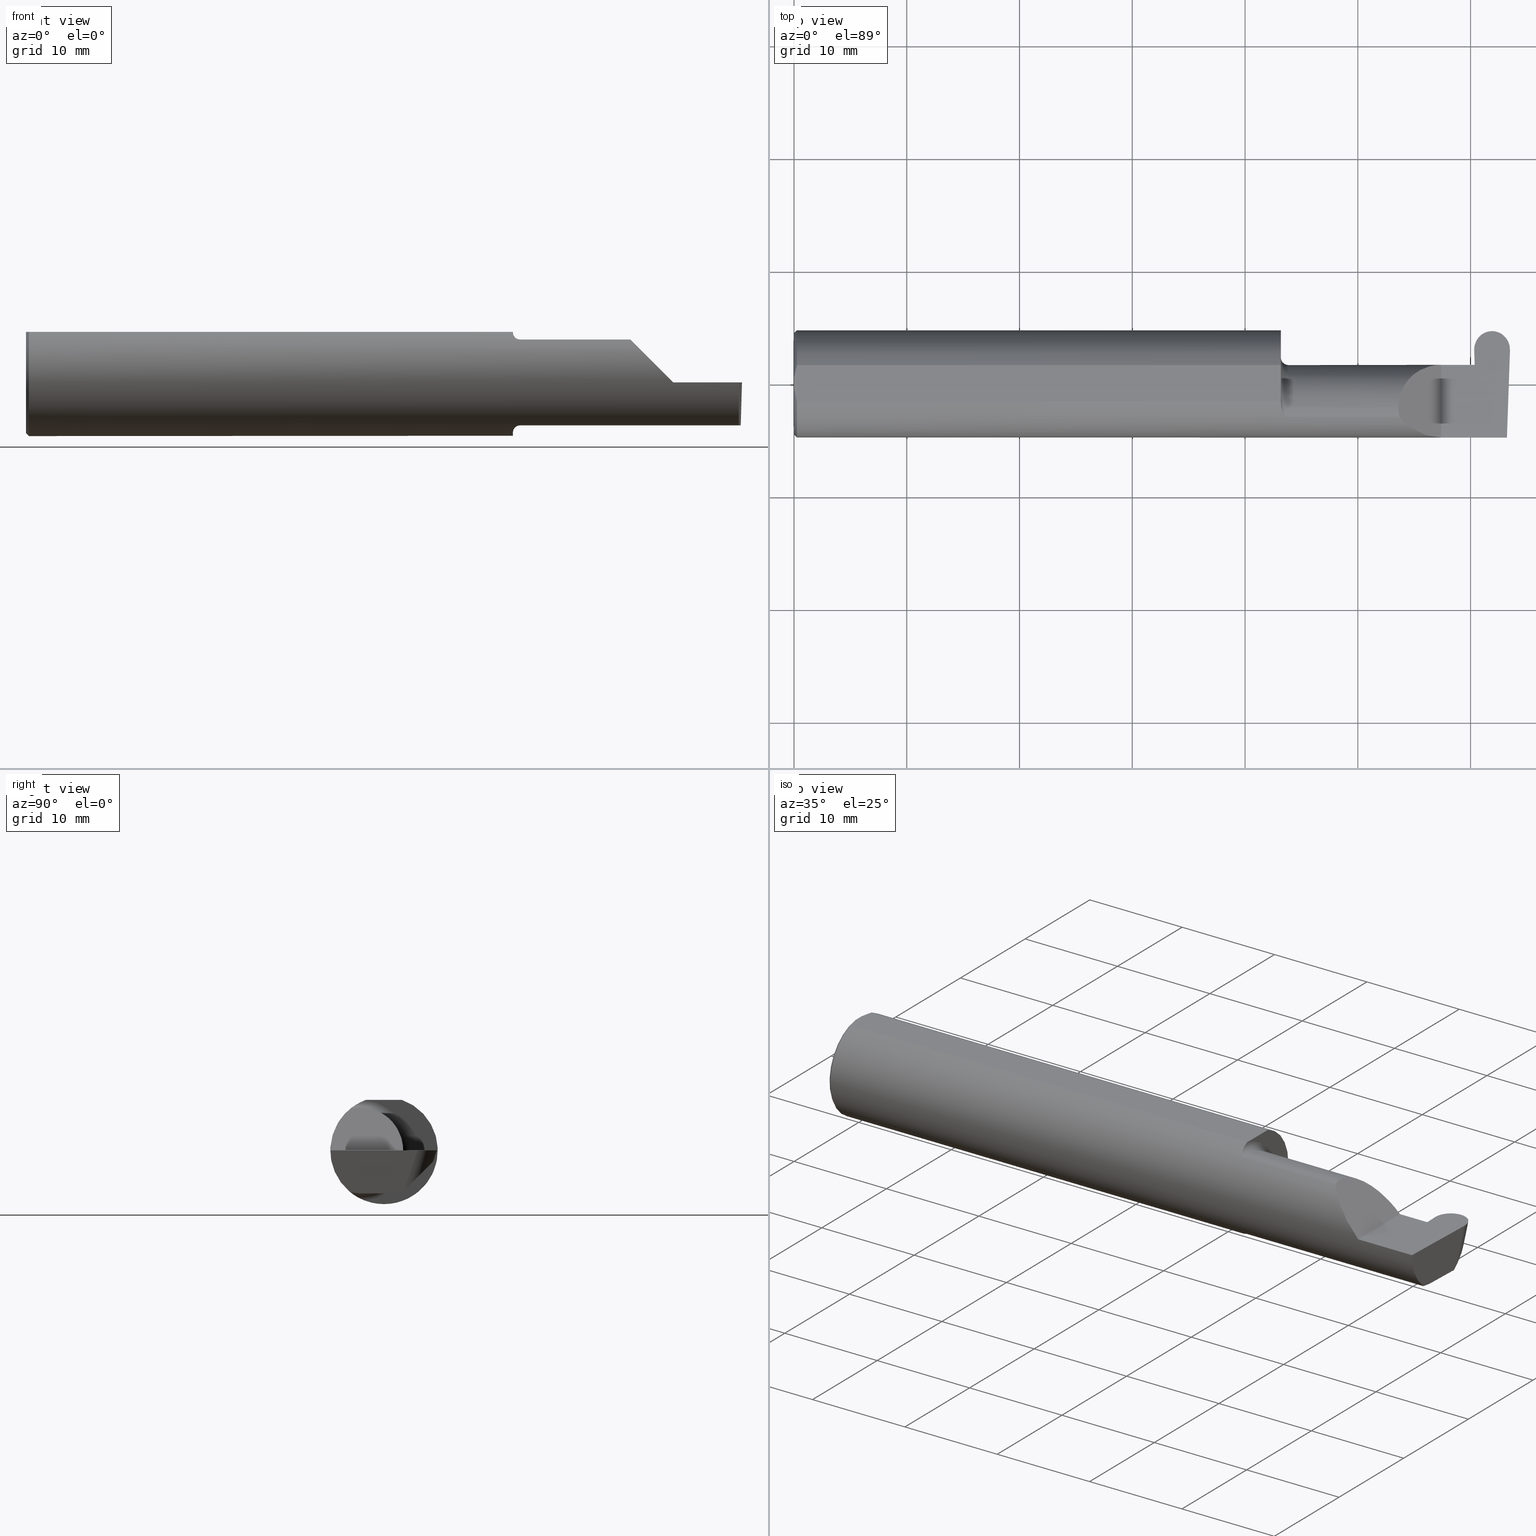
[diagram: canonical four-view strip — front | top / right | iso, engineering-drawing reading convention]
A machine part, canonical four-view strip (front | top / right | iso — engineering-drawing reading convention). The complete STEP part file that produces these views, byte-faithful:
ISO-10303-21;
HEADER;
FILE_DESCRIPTION (( 'STEP AP203' ),
    '1' );
FILE_NAME ('222197-GFR124-12.STEP',
    '2024-06-28T18:55:33',
    ( '' ),
    ( '' ),
    'SwSTEP 2.0',
    'SolidWorks 2024',
    '' );
FILE_SCHEMA (( 'CONFIG_CONTROL_DESIGN' ));
ENDSEC;

DATA;
#1 = DIRECTION ( 'NONE',  ( -1.000000000000000000, -0.000000000000000000, -0.000000000000000000 ) ) ;
#2 = CARTESIAN_POINT ( 'NONE',  ( 2.367498442027135663, 0.06665000000000002867, 0.000000000000000000 ) ) ;
#3 = ORIENTED_EDGE ( 'NONE', *, *, #192, .T. ) ;
#4 = CC_DESIGN_PERSON_AND_ORGANIZATION_ASSIGNMENT ( #40, #655, ( #308 ) ) ;
#5 = DIRECTION ( 'NONE',  ( -1.000000000000000000, -0.000000000000000000, -0.000000000000000000 ) ) ;
#6 = ORIENTED_EDGE ( 'NONE', *, *, #340, .T. ) ;
#7 = LOCAL_TIME ( 11, 55, 33.00000000000000000, #292 ) ;
#8 = CARTESIAN_POINT ( 'NONE',  ( 2.498921893354421719, 0.1301396316170289058, -0.08016341992612115164 ) ) ;
#9 = AXIS2_PLACEMENT_3D ( 'NONE', #290, #599, #95 ) ;
#10 = CARTESIAN_POINT ( 'NONE',  ( 2.378834654010996807, 0.07225145685232270409, -0.1380515946908279779 ) ) ;
#11 = VERTEX_POINT ( 'NONE', #605 ) ;
#12 = LINE ( 'NONE', #635, #391 ) ;
#13 = EDGE_CURVE ( 'NONE', #93, #87, #415, .T. ) ;
#14 = FACE_OUTER_BOUND ( 'NONE', #23, .T. ) ;
#15 = ORIENTED_EDGE ( 'NONE', *, *, #718, .F. ) ;
#16 = CARTESIAN_POINT ( 'NONE',  ( 2.497701985005003511, 0.1068529269586859509, -0.1034501245844643563 ) ) ;
#17 = EDGE_CURVE ( 'NONE', #311, #203, #228, .T. ) ;
#18 = DIRECTION ( 'NONE',  ( 1.000000000000000000, -0.000000000000000000, -0.000000000000000000 ) ) ;
#19 = VERTEX_POINT ( 'NONE', #797 ) ;
#20 = CARTESIAN_POINT ( 'NONE',  ( 2.437361994999999837, 0.1722997177119686418, -0.03800333383118095765 ) ) ;
#21 = CARTESIAN_POINT ( 'NONE',  ( 2.376870536005303070, 0.1941621689924789562, -0.01614088255067036917 ) ) ;
#22 = AXIS2_PLACEMENT_3D ( 'NONE', #58, #1, #314 ) ;
#23 = EDGE_LOOP ( 'NONE', ( #730, #619, #195, #538, #677, #672, #458, #199, #775, #212, #704, #411, #162, #575, #528 ) ) ;
#24 = EDGE_CURVE ( 'NONE', #203, #169, #671, .T. ) ;
#25 = APPROVAL_STATUS ( 'not_yet_approved' ) ;
#26 = CARTESIAN_POINT ( 'NONE',  ( 2.490246926064548560, -0.08335000000000014619, -0.1500000000000000500 ) ) ;
#27 = ORIENTED_EDGE ( 'NONE', *, *, #566, .T. ) ;
#28 = LINE ( 'NONE', #784, #260 ) ;
#29 = AXIS2_PLACEMENT_3D ( 'NONE', #322, #138, #710 ) ;
#30 = CARTESIAN_POINT ( 'NONE',  ( 2.501240488363984493, 0.1564415835413277001, -7.820279735944560344E-18 ) ) ;
#31 = CALENDAR_DATE ( 2024, 28, 6 ) ;
#32 = CARTESIAN_POINT ( 'NONE',  ( 1.699999999999999956, -0.06851976604679071992, 0.1743704796142198366 ) ) ;
#33 = DIRECTION ( 'NONE',  ( -0.000000000000000000, 1.000000000000000000, -0.000000000000000000 ) ) ;
#34 = AXIS2_PLACEMENT_3D ( 'NONE', #521, #781, #511 ) ;
#35 = ORIENTED_EDGE ( 'NONE', *, *, #625, .F. ) ;
#36 =( GEOMETRIC_REPRESENTATION_CONTEXT ( 3 ) GLOBAL_UNCERTAINTY_ASSIGNED_CONTEXT ( ( #275 ) ) GLOBAL_UNIT_ASSIGNED_CONTEXT ( ( #163, #226, #105 ) ) REPRESENTATION_CONTEXT ( 'NONE', 'WORKASPACE' ) );
#37 = ADVANCED_FACE ( 'NONE', ( #481 ), #294, .T. ) ;
#38 = CARTESIAN_POINT ( 'NONE',  ( 2.499961842619776053, 0.1198259601510516942, 0.000000000000000000 ) ) ;
#39 = CARTESIAN_POINT ( 'NONE',  ( 0.000000000000000000, -0.06325108694718235836, 0.1763499999999999235 ) ) ;
#40 = PERSON_AND_ORGANIZATION ( #805, #709 ) ;
#41 = CARTESIAN_POINT ( 'NONE',  ( 2.489130585478359858, -0.1172600179964006784, -0.1461167706989303650 ) ) ;
#42 = ORIENTED_EDGE ( 'NONE', *, *, #714, .F. ) ;
#43 = PRODUCT_RELATED_PRODUCT_CATEGORY ( 'detail', '', ( #525 ) ) ;
#44 = EDGE_LOOP ( 'NONE', ( #47, #27, #238, #254 ) ) ;
#45 = DIRECTION ( 'NONE',  ( -0.7071067811865441310, 0.000000000000000000, -0.7071067811865510144 ) ) ;
#46 = CARTESIAN_POINT ( 'NONE',  ( 1.699999999999999956, -0.08334999999999999354, 0.000000000000000000 ) ) ;
#47 = ORIENTED_EDGE ( 'NONE', *, *, #542, .F. ) ;
#48 = ADVANCED_FACE ( 'NONE', ( #99 ), #590, .F. ) ;
#49 = PERSON_AND_ORGANIZATION ( #805, #709 ) ;
#50 =( BOUNDED_CURVE ( )  B_SPLINE_CURVE ( 3, ( #500, #363, #804, #241 ),
 .UNSPECIFIED., .F., .T. ) 
 B_SPLINE_CURVE_WITH_KNOTS ( ( 4, 4 ),
 ( 0.000000000000000000, 1.570796326794896336 ),
 .UNSPECIFIED. ) 
 CURVE ( )  GEOMETRIC_REPRESENTATION_ITEM ( )  RATIONAL_B_SPLINE_CURVE ( ( 1.000000000000000000, 0.8047378541243650485, 0.8047378541243650485, 1.000000000000000000 ) ) 
 REPRESENTATION_ITEM ( '' )  );
#51 = FACE_OUTER_BOUND ( 'NONE', #496, .T. ) ;
#52 = CARTESIAN_POINT ( 'NONE',  ( 2.876828993045917215, 0.1873499999999998500, 0.1763499999999999235 ) ) ;
#53 = ADVANCED_FACE ( 'NONE', ( #789 ), #732, .F. ) ;
#54 = DIRECTION ( 'NONE',  ( 0.000000000000000000, 0.000000000000000000, 1.000000000000000000 ) ) ;
#55 = LINE ( 'NONE', #253, #733 ) ;
#56 = ORIENTED_EDGE ( 'NONE', *, *, #63, .F. ) ;
#57 = AXIS2_PLACEMENT_3D ( 'NONE', #52, #193, #319 ) ;
#58 = CARTESIAN_POINT ( 'NONE',  ( 1.724999999999999867, -0.08334999999999999354, 0.000000000000000000 ) ) ;
#59 = CARTESIAN_POINT ( 'NONE',  ( 2.111300037307153765, -0.1061291577212410409, 0.1486999626928446061 ) ) ;
#60 = EDGE_LOOP ( 'NONE', ( #523, #356, #453 ) ) ;
#61 = VECTOR ( 'NONE', #148, 39.37007874015748143 ) ;
#62 = DIRECTION ( 'NONE',  ( 0.000000000000000000, 0.000000000000000000, -1.000000000000000000 ) ) ;
#63 = EDGE_CURVE ( 'NONE', #596, #579, #410, .T. ) ;
#64 = PLANE ( 'NONE',  #200 ) ;
#65 = CARTESIAN_POINT ( 'NONE',  ( 1.699999999999999956, -0.08334999999999999354, 0.000000000000000000 ) ) ;
#66 = FACE_OUTER_BOUND ( 'NONE', #503, .T. ) ;
#67 = ORIENTED_EDGE ( 'NONE', *, *, #669, .T. ) ;
#68 = CIRCLE ( 'NONE', #678, 0.02499999999999993894 ) ;
#69 = CARTESIAN_POINT ( 'NONE',  ( 2.376713715390371462, 0.06655862405287324424, -0.005234924505376470014 ) ) ;
#70 = FACE_OUTER_BOUND ( 'NONE', #712, .T. ) ;
#71 = ORIENTED_EDGE ( 'NONE', *, *, #815, .F. ) ;
#72 = EDGE_CURVE ( 'NONE', #165, #744, #577, .T. ) ;
#73 = APPROVAL_PERSON_ORGANIZATION ( #49, #264, #300 ) ;
#74 = CARTESIAN_POINT ( 'NONE',  ( 1.724999999999999867, -0.08334999999999997966, -0.1499999999999999944 ) ) ;
#75 = AXIS2_PLACEMENT_3D ( 'NONE', #65, #617, #54 ) ;
#76 = CARTESIAN_POINT ( 'NONE',  ( 2.489130585478359858, -0.1172600179964006784, -0.1461167706989303650 ) ) ;
#77 = ORIENTED_EDGE ( 'NONE', *, *, #24, .F. ) ;
#78 =( BOUNDED_CURVE ( )  B_SPLINE_CURVE ( 3, ( #772, #145, #8, #272 ),
 .UNSPECIFIED., .F., .T. ) 
 B_SPLINE_CURVE_WITH_KNOTS ( ( 4, 4 ),
 ( 3.135912951325158016, 4.726229945297544255 ),
 .UNSPECIFIED. ) 
 CURVE ( )  GEOMETRIC_REPRESENTATION_ITEM ( )  RATIONAL_B_SPLINE_CURVE ( ( 1.000000000000000000, 0.8001144080103654854, 0.8001144080103654854, 1.000000000000000000 ) ) 
 REPRESENTATION_ITEM ( '' )  );
#79 = EDGE_CURVE ( 'NONE', #666, #748, #406, .T. ) ;
#80 = FACE_OUTER_BOUND ( 'NONE', #327, .T. ) ;
#81 = CARTESIAN_POINT ( 'NONE',  ( 2.260000000000000231, -0.1873499999999999888, 2.939152317953647352E-17 ) ) ;
#82 = ORIENTED_EDGE ( 'NONE', *, *, #17, .T. ) ;
#83 = CARTESIAN_POINT ( 'NONE',  ( 0.005155213631852493573, 0.04890080824240055496, 0.1763499999999999235 ) ) ;
#84 = EDGE_CURVE ( 'NONE', #744, #179, #220, .T. ) ;
#85 = CARTESIAN_POINT ( 'NONE',  ( 2.437361994999999837, 0.1722997177119686418, -0.03800333383118095765 ) ) ;
#86 = DESIGN_CONTEXT ( 'detailed design', #765, 'design' ) ;
#87 = VERTEX_POINT ( 'NONE', #347 ) ;
#88 = CARTESIAN_POINT ( 'NONE',  ( 2.109999999999998987, -0.08334999999999999354, 0.1499999999999999944 ) ) ;
#89 = LOCAL_TIME ( 11, 55, 33.00000000000000000, #802 ) ;
#90 = CARTESIAN_POINT ( 'NONE',  ( 2.113883229301068312, -0.1172600179964008171, 0.1461167706989301707 ) ) ;
#91 = EDGE_CURVE ( 'NONE', #232, #93, #600, .T. ) ;
#92 = TOROIDAL_SURFACE ( 'NONE', #22, 0.1749999999999999334, 0.02499999999999993894 ) ;
#93 = VERTEX_POINT ( 'NONE', #130 ) ;
#94 = CARTESIAN_POINT ( 'NONE',  ( 2.376619092827160884, 0.06664999999999998703, 0.000000000000000000 ) ) ;
#95 = DIRECTION ( 'NONE',  ( 0.000000000000000000, -0.01745240643728358451, -0.9998476951563912696 ) ) ;
#96 = ORIENTED_EDGE ( 'NONE', *, *, #738, .F. ) ;
#97 = DIRECTION ( 'NONE',  ( -0.7071067811865509034, 0.000000000000000000, 0.7071067811865440200 ) ) ;
#98 = AXIS2_PLACEMENT_3D ( 'NONE', #287, #532, #291 ) ;
#99 = FACE_OUTER_BOUND ( 'NONE', #147, .T. ) ;
#100 = ORIENTED_EDGE ( 'NONE', *, *, #365, .F. ) ;
#101 = ADVANCED_FACE ( 'NONE', ( #182 ), #64, .F. ) ;
#102 = CARTESIAN_POINT ( 'NONE',  ( 2.379376900814294871, -0.08346159389558750752, -0.1500000000000000500 ) ) ;
#103 = CARTESIAN_POINT ( 'NONE',  ( 1.699999999999999956, -0.08334999999999997966, -0.1499999999999999944 ) ) ;
#104 = EDGE_LOOP ( 'NONE', ( #489, #558, #646, #755, #96 ) ) ;
#105 =( NAMED_UNIT ( * ) SI_UNIT ( $, .STERADIAN. ) SOLID_ANGLE_UNIT ( ) );
#106 = CARTESIAN_POINT ( 'NONE',  ( 2.733184360054361939, -0.08335000000000014619, -0.1500000000000000500 ) ) ;
#107 = DIRECTION ( 'NONE',  ( 1.000000000000000000, 0.000000000000000000, 0.000000000000000000 ) ) ;
#108 = DATE_AND_TIME ( #221, #7 ) ;
#109 = PLANE ( 'NONE',  #233 ) ;
#110 = ADVANCED_FACE ( 'NONE', ( #315 ), #306, .T. ) ;
#111 = DIRECTION ( 'NONE',  ( 0.000000000000000000, 0.000000000000000000, 1.000000000000000000 ) ) ;
#112 = AXIS2_PLACEMENT_3D ( 'NONE', #628, #5, #375 ) ;
#113 = SHAPE_DEFINITION_REPRESENTATION ( #513, #778 ) ;
#114 = DIRECTION ( 'NONE',  ( 1.000000000000000000, 0.000000000000000000, 0.000000000000000000 ) ) ;
#115 = CARTESIAN_POINT ( 'NONE',  ( 2.499866899295296374, 0.1171071390637351134, 0.000000000000000000 ) ) ;
#116 = ORIENTED_EDGE ( 'NONE', *, *, #566, .F. ) ;
#117 = VECTOR ( 'NONE', #231, 39.37007874015748854 ) ;
#118 = DIRECTION ( 'NONE',  ( -1.000000000000000000, -0.000000000000000000, -0.000000000000000000 ) ) ;
#119 = DIRECTION ( 'NONE',  ( 1.000000000000000000, 0.000000000000000000, 0.000000000000000000 ) ) ;
#120 = EDGE_LOOP ( 'NONE', ( #764, #139, #42, #239, #634 ) ) ;
#121 = CARTESIAN_POINT ( 'NONE',  ( 1.720724556588812071, -0.1172600179964061184, 0.1461167706989260351 ) ) ;
#122 = LINE ( 'NONE', #338, #174 ) ;
#123 = VERTEX_POINT ( 'NONE', #688 ) ;
#124 = EDGE_CURVE ( 'NONE', #232, #596, #194, .T. ) ;
#125 = FACE_OUTER_BOUND ( 'NONE', #643, .T. ) ;
#126 = DIRECTION ( 'NONE',  ( -0.03489949670249442581, -0.9993908270190959842, 0.000000000000000000 ) ) ;
#127 = ORIENTED_EDGE ( 'NONE', *, *, #79, .F. ) ;
#128 = B_SPLINE_CURVE_WITH_KNOTS ( 'NONE', 3,
 ( #814, #428, #758, #703, #751, #189, #618, #435, #754, #380, #439, #186 ),
 .UNSPECIFIED., .F., .F.,
 ( 4, 2, 2, 2, 2, 4 ),
 ( 1.967976973658592312E-07, 0.0001599896235275545693, 0.0003197824493577432442, 0.0006393681010181212444, 0.0009589537526784992988, 0.001278539404338877245 ),
 .UNSPECIFIED. ) ;
#129 = DIRECTION ( 'NONE',  ( -1.000000000000000000, -0.000000000000000000, -0.000000000000000000 ) ) ;
#130 = CARTESIAN_POINT ( 'NONE',  ( 1.699999999999999956, -0.06325108694718287183, 0.1763499999999999235 ) ) ;
#131 = ORIENTED_EDGE ( 'NONE', *, *, #167, .F. ) ;
#132 = CARTESIAN_POINT ( 'NONE',  ( 2.376713715390371462, 0.06655862405287324424, -0.005234924505376470014 ) ) ;
#133 = DIRECTION ( 'NONE',  ( 0.000000000000000000, -0.7071067811865434649, -0.7071067811865515695 ) ) ;
#134 = EDGE_CURVE ( 'NONE', #339, #404, #128, .T. ) ;
#135 = ORIENTED_EDGE ( 'NONE', *, *, #738, .T. ) ;
#136 =( BOUNDED_CURVE ( )  B_SPLINE_CURVE ( 3, ( #623, #59, #310, #495 ),
 .UNSPECIFIED., .F., .T. ) 
 B_SPLINE_CURVE_WITH_KNOTS ( ( 4, 4 ),
 ( 6.055147272130141367, 6.283185307179586232 ),
 .UNSPECIFIED. ) 
 CURVE ( )  GEOMETRIC_REPRESENTATION_ITEM ( )  RATIONAL_B_SPLINE_CURVE ( ( 1.000000000000000000, 0.9956712472009929815, 0.9956712472009929815, 1.000000000000000000 ) ) 
 REPRESENTATION_ITEM ( '' )  );
#137 = CARTESIAN_POINT ( 'NONE',  ( 2.374762147380223620, 0.1198259601510516803, 0.000000000000000000 ) ) ;
#138 = DIRECTION ( 'NONE',  ( 0.9998367324388628408, 0.0003153570480504921296, 0.01806679318280217730 ) ) ;
#139 = ORIENTED_EDGE ( 'NONE', *, *, #794, .F. ) ;
#140 = ADVANCED_FACE ( 'NONE', ( #66 ), #492, .T. ) ;
#141 = CARTESIAN_POINT ( 'NONE',  ( 2.379331556216793597, 0.06030305154315079852, -0.1500000000000000500 ) ) ;
#142 = AXIS2_PLACEMENT_3D ( 'NONE', #293, #535, #656 ) ;
#143 = CARTESIAN_POINT ( 'NONE',  ( 0.01000000000000013205, -0.06325108694718235836, 0.1763499999999999235 ) ) ;
#144 = ORIENTED_EDGE ( 'NONE', *, *, #625, .T. ) ;
#145 = CARTESIAN_POINT ( 'NONE',  ( 2.474538988275240659, 0.1718204462013807887, -0.03848260534176874831 ) ) ;
#146 = CARTESIAN_POINT ( 'NONE',  ( 3.749399456654646757E-32, -0.1873499999999999610, 3.061616997868383634E-16 ) ) ;
#147 = EDGE_LOOP ( 'NONE', ( #541, #135, #441, #416, #473 ) ) ;
#148 = DIRECTION ( 'NONE',  ( 0.02739170151060085420, -0.3089010440752013031, -0.9506996579664918068 ) ) ;
#149 = DIRECTION ( 'NONE',  ( 0.000000000000000000, 0.000000000000000000, -1.000000000000000000 ) ) ;
#150 = ORIENTED_EDGE ( 'NONE', *, *, #459, .T. ) ;
#151 = CARTESIAN_POINT ( 'NONE',  ( 2.373483501636015180, 0.1564415835413277556, 1.582374065488283881E-17 ) ) ;
#152 = LINE ( 'NONE', #282, #337 ) ;
#153 = VECTOR ( 'NONE', #181, 39.37007874015748143 ) ;
#154 = ORIENTED_EDGE ( 'NONE', *, *, #612, .T. ) ;
#155 = PERSON_AND_ORGANIZATION ( #805, #709 ) ;
#156 = DIRECTION ( 'NONE',  ( 1.000000000000000000, 0.000000000000000000, -0.000000000000000000 ) ) ;
#157 = CARTESIAN_POINT ( 'NONE',  ( 2.475377307836966079, 0.1846499999999998975, -4.652953611126238856E-18 ) ) ;
#158 = ORIENTED_EDGE ( 'NONE', *, *, #756, .F. ) ;
#159 = DIRECTION ( 'NONE',  ( 0.000000000000000000, 0.000000000000000000, 1.000000000000000000 ) ) ;
#160 = CLOSED_SHELL ( 'NONE', ( #746, #633, #572, #555, #110, #390, #374, #429, #530, #140, #229, #536, #760, #37, #620, #506, #53, #354, #48, #101, #235, #486, #582 ) ) ;
#161 = APPROVAL ( #345, 'UNSPECIFIED' ) ;
#162 = ORIENTED_EDGE ( 'NONE', *, *, #209, .F. ) ;
#163 =( CONVERSION_BASED_UNIT ( 'INCH', #213 ) LENGTH_UNIT ( ) NAMED_UNIT ( #630 ) );
#164 = DIRECTION ( 'NONE',  ( -1.000000000000000000, -0.000000000000000000, -0.000000000000000000 ) ) ;
#165 = VERTEX_POINT ( 'NONE', #563 ) ;
#166 = CIRCLE ( 'NONE', #324, 0.1499999999999999944 ) ;
#167 = EDGE_CURVE ( 'NONE', #579, #175, #242, .T. ) ;
#168 = LINE ( 'NONE', #38, #117 ) ;
#169 = VERTEX_POINT ( 'NONE', #2 ) ;
#170 = APPROVAL_STATUS ( 'not_yet_approved' ) ;
#171 = EDGE_CURVE ( 'NONE', #404, #676, #68, .T. ) ;
#172 = CARTESIAN_POINT ( 'NONE',  ( 1.700000000000000400, 0.06655862405286942785, -0.005234924505230438389 ) ) ;
#173 = CARTESIAN_POINT ( 'NONE',  ( 1.699999999999999956, 0.06664999999999998703, 9.797174393178831081E-17 ) ) ;
#174 = VECTOR ( 'NONE', #770, 39.37007874015748143 ) ;
#175 = VERTEX_POINT ( 'NONE', #445 ) ;
#176 = LINE ( 'NONE', #742, #442 ) ;
#177 = LINE ( 'NONE', #684, #321 ) ;
#178 = SECURITY_CLASSIFICATION ( '', '', #313 ) ;
#179 = VERTEX_POINT ( 'NONE', #257 ) ;
#180 = AXIS2_PLACEMENT_3D ( 'NONE', #808, #559, #366 ) ;
#181 = DIRECTION ( 'NONE',  ( -1.000000000000000000, -0.000000000000000000, -0.000000000000000000 ) ) ;
#182 = FACE_OUTER_BOUND ( 'NONE', #385, .T. ) ;
#183 = ORIENTED_EDGE ( 'NONE', *, *, #197, .T. ) ;
#184 = EDGE_CURVE ( 'NONE', #501, #371, #55, .T. ) ;
#185 = DIRECTION ( 'NONE',  ( 0.000000000000000000, 0.000000000000000000, -1.000000000000000000 ) ) ;
#186 = CARTESIAN_POINT ( 'NONE',  ( 1.701062863587535334, -0.08334999999999991027, -0.1677879614275112619 ) ) ;
#187 = EDGE_LOOP ( 'NONE', ( #299, #570, #150, #266 ) ) ;
#188 = DIRECTION ( 'NONE',  ( 1.000000000000000000, 0.000000000000000000, 0.000000000000000000 ) ) ;
#189 = CARTESIAN_POINT ( 'NONE',  ( 1.711340974786206282, -0.1102890168945987320, -0.1514792188789464700 ) ) ;
#190 = ORIENTED_EDGE ( 'NONE', *, *, #329, .F. ) ;
#191 = DIRECTION ( 'NONE',  ( -1.000000000000000000, -0.000000000000000000, -0.000000000000000000 ) ) ;
#192 = EDGE_CURVE ( 'NONE', #717, #203, #50, .T. ) ;
#193 = DIRECTION ( 'NONE',  ( 0.000000000000000000, 0.000000000000000000, 1.000000000000000000 ) ) ;
#194 = B_SPLINE_CURVE_WITH_KNOTS ( 'NONE', 3,
 ( #763, #616, #370, #747 ),
 .UNSPECIFIED., .F., .F.,
 ( 4, 4 ),
 ( 0.009771445421851331775, 0.01092787937989104369 ),
 .UNSPECIFIED. ) ;
#195 = ORIENTED_EDGE ( 'NONE', *, *, #245, .T. ) ;
#196 = DIRECTION ( 'NONE',  ( 0.000000000000000000, 0.000000000000000000, 1.000000000000000000 ) ) ;
#197 = EDGE_CURVE ( 'NONE', #666, #225, #177, .T. ) ;
#198 = CARTESIAN_POINT ( 'NONE',  ( 1.701062863587535334, -0.08334999999999991027, -0.1677879614275112619 ) ) ;
#199 = ORIENTED_EDGE ( 'NONE', *, *, #423, .F. ) ;
#200 = AXIS2_PLACEMENT_3D ( 'NONE', #632, #698, #126 ) ;
#201 = CARTESIAN_POINT ( 'NONE',  ( 2.378834654010996807, 0.07225145685232270409, -0.1380515946908279779 ) ) ;
#202 = PLANE ( 'NONE',  #697 ) ;
#203 = VERTEX_POINT ( 'NONE', #809 ) ;
#204 = LOCAL_TIME ( 11, 55, 33.00000000000000000, #783 ) ;
#205 = CARTESIAN_POINT ( 'NONE',  ( 2.367407066079999733, 0.06655862405286441796, -0.005234924505373435982 ) ) ;
#206 = AXIS2_PLACEMENT_3D ( 'NONE', #682, #695, #378 ) ;
#207 = DIRECTION ( 'NONE',  ( 0.000000000000000000, 0.000000000000000000, 1.000000000000000000 ) ) ;
#208 = ORIENTED_EDGE ( 'NONE', *, *, #510, .T. ) ;
#209 = EDGE_CURVE ( 'NONE', #601, #87, #422, .T. ) ;
#210 = DIRECTION ( 'NONE',  ( 0.000000000000000000, 0.000000000000000000, 1.000000000000000000 ) ) ;
#211 = LINE ( 'NONE', #326, #247 ) ;
#212 = ORIENTED_EDGE ( 'NONE', *, *, #316, .T. ) ;
#213 = LENGTH_MEASURE_WITH_UNIT ( LENGTH_MEASURE( 0.02539999999999999897 ), #533 );
#214 = B_SPLINE_CURVE_WITH_KNOTS ( 'NONE', 3,
 ( #32, #527, #219, #285 ),
 .UNSPECIFIED., .F., .F.,
 ( 4, 4 ),
 ( 4.423516731080805653E-05, 0.0004561457252213466573 ),
 .UNSPECIFIED. ) ;
#215 = CARTESIAN_POINT ( 'NONE',  ( 2.202189699843948745, -0.1873500000000000443, 0.05781030015605096578 ) ) ;
#216 = ORIENTED_EDGE ( 'NONE', *, *, #13, .F. ) ;
#217 = CALENDAR_DATE ( 2024, 28, 6 ) ;
#218 = EDGE_CURVE ( 'NONE', #518, #717, #136, .T. ) ;
#219 = CARTESIAN_POINT ( 'NONE',  ( 1.700344683557281300, -0.07855153123406186100, 0.1701716388274757408 ) ) ;
#220 = LINE ( 'NONE', #469, #359 ) ;
#221 = CALENDAR_DATE ( 2024, 28, 6 ) ;
#222 = FACE_OUTER_BOUND ( 'NONE', #707, .T. ) ;
#223 = EDGE_CURVE ( 'NONE', #561, #165, #122, .T. ) ;
#224 = DIRECTION ( 'NONE',  ( 0.000000000000000000, -0.9510565162951534202, 0.3090169943749482284 ) ) ;
#225 = VERTEX_POINT ( 'NONE', #10 ) ;
#226 =( NAMED_UNIT ( * ) PLANE_ANGLE_UNIT ( ) SI_UNIT ( $, .RADIAN. ) );
#227 = PLANE ( 'NONE',  #9 ) ;
#228 = LINE ( 'NONE', #801, #608 ) ;
#229 = ADVANCED_FACE ( 'NONE', ( #452 ), #265, .F. ) ;
#230 = DATE_TIME_ROLE ( 'creation_date' ) ;
#231 = DIRECTION ( 'NONE',  ( -0.03489949670249442581, -0.9993908270190959842, 0.000000000000000000 ) ) ;
#232 = VERTEX_POINT ( 'NONE', #143 ) ;
#233 = AXIS2_PLACEMENT_3D ( 'NONE', #106, #237, #156 ) ;
#234 = ORIENTED_EDGE ( 'NONE', *, *, #794, .T. ) ;
#235 = ADVANCED_FACE ( 'NONE', ( #70 ), #517, .F. ) ;
#236 = CALENDAR_DATE ( 2024, 28, 6 ) ;
#237 = DIRECTION ( 'NONE',  ( 0.000000000000000000, 0.000000000000000000, 1.000000000000000000 ) ) ;
#238 = ORIENTED_EDGE ( 'NONE', *, *, #316, .F. ) ;
#239 = ORIENTED_EDGE ( 'NONE', *, *, #84, .F. ) ;
#240 = CARTESIAN_POINT ( 'NONE',  ( 1.704075010165368775, -0.09778159395695865119, 0.1599914159748310472 ) ) ;
#241 = CARTESIAN_POINT ( 'NONE',  ( 2.260000000000000231, 0.06664999999999998703, 9.797174393178831081E-17 ) ) ;
#242 = CIRCLE ( 'NONE', #112, 0.1773499999999999521 ) ;
#243 = ORIENTED_EDGE ( 'NONE', *, *, #669, .F. ) ;
#244 = CARTESIAN_POINT ( 'NONE',  ( 0.000000000000000000, 0.01880691362238934988, 0.1763499999999999235 ) ) ;
#245 = EDGE_CURVE ( 'NONE', #123, #311, #586, .T. ) ;
#246 = ORIENTED_EDGE ( 'NONE', *, *, #365, .T. ) ;
#247 = VECTOR ( 'NONE', #388, 39.37007874015748143 ) ;
#248 = VECTOR ( 'NONE', #417, 39.37007874015748143 ) ;
#249 = DIRECTION ( 'NONE',  ( 0.000000000000000000, 0.000000000000000000, 1.000000000000000000 ) ) ;
#250 = DIRECTION ( 'NONE',  ( -0.03701744261649968920, 0.7066221440565398915, 0.7066221440565479961 ) ) ;
#251 = ORIENTED_EDGE ( 'NONE', *, *, #674, .F. ) ;
#252 = CARTESIAN_POINT ( 'NONE',  ( 0.000000000000000000, -0.01880691362238934641, 0.1763499999999999235 ) ) ;
#253 = CARTESIAN_POINT ( 'NONE',  ( 2.490542817754151539, -0.07487677063221394314, -0.1500000000000000500 ) ) ;
#254 = ORIENTED_EDGE ( 'NONE', *, *, #124, .T. ) ;
#255 = VECTOR ( 'NONE', #107, 39.37007874015748143 ) ;
#256 = CARTESIAN_POINT ( 'NONE',  ( 1.699999999999999956, -0.08334999999999999354, 0.000000000000000000 ) ) ;
#257 = CARTESIAN_POINT ( 'NONE',  ( 2.437361994999999837, 0.1781371089828279186, -0.02004461746296721733 ) ) ;
#258 = ORIENTED_EDGE ( 'NONE', *, *, #686, .F. ) ;
#259 = EDGE_CURVE ( 'NONE', #493, #339, #211, .T. ) ;
#260 = VECTOR ( 'NONE', #589, 39.37007874015748143 ) ;
#261 = CARTESIAN_POINT ( 'NONE',  ( 1.699999999999999956, -0.06851976604679071992, -0.1743704796142198366 ) ) ;
#262 = ORIENTED_EDGE ( 'NONE', *, *, #192, .F. ) ;
#263 = DIRECTION ( 'NONE',  ( -1.000000000000000000, -0.000000000000000000, -0.000000000000000000 ) ) ;
#264 = APPROVAL ( #170, 'UNSPECIFIED' ) ;
#265 = PLANE ( 'NONE',  #637 ) ;
#266 = ORIENTED_EDGE ( 'NONE', *, *, #184, .T. ) ;
#267 = LINE ( 'NONE', #137, #312 ) ;
#268 = FACE_OUTER_BOUND ( 'NONE', #472, .T. ) ;
#269 = EDGE_CURVE ( 'NONE', #334, #744, #716, .T. ) ;
#270 = EDGE_LOOP ( 'NONE', ( #342, #743, #446, #331, #663 ) ) ;
#271 =( BOUNDED_CURVE ( )  B_SPLINE_CURVE ( 3, ( #76, #400, #649, #26 ),
 .UNSPECIFIED., .F., .T. ) 
 B_SPLINE_CURVE_WITH_KNOTS ( ( 4, 4 ),
 ( 0.8789888184544187855, 1.107026853503861874 ),
 .UNSPECIFIED. ) 
 CURVE ( )  GEOMETRIC_REPRESENTATION_ITEM ( )  RATIONAL_B_SPLINE_CURVE ( ( 1.000000000000000000, 0.9956712472009929815, 0.9956712472009929815, 1.000000000000000000 ) ) 
 REPRESENTATION_ITEM ( '' )  );
#272 = CARTESIAN_POINT ( 'NONE',  ( 2.495889335989002422, 0.07225145685232294002, -0.1380515946908277558 ) ) ;
#273 = CIRCLE ( 'NONE', #286, 0.1773499999999999521 ) ;
#274 = DIRECTION ( 'NONE',  ( -0.01299916717458277429, 0.7070470357949164564, 0.7070470357949245610 ) ) ;
#275 = UNCERTAINTY_MEASURE_WITH_UNIT (LENGTH_MEASURE( 1.000000000000000082E-05 ), #163, 'distance_accuracy_value', 'NONE');
#276 = EDGE_LOOP ( 'NONE', ( #364, #190, #82, #262 ) ) ;
#277 = PERSON_AND_ORGANIZATION ( #805, #709 ) ;
#278 = DIRECTION ( 'NONE',  ( 1.000000000000000000, 0.000000000000000000, 0.000000000000000000 ) ) ;
#279 = ORIENTED_EDGE ( 'NONE', *, *, #604, .T. ) ;
#280 = EDGE_CURVE ( 'NONE', #493, #123, #606, .T. ) ;
#281 = MECHANICAL_CONTEXT ( 'NONE', #547, 'mechanical' ) ;
#282 = CARTESIAN_POINT ( 'NONE',  ( 2.376619092827160884, 0.06664999999999998703, 0.000000000000000000 ) ) ;
#283 = CARTESIAN_POINT ( 'NONE',  ( 2.437939523532632435, 0.1846500000000000363, 0.000000000000000000 ) ) ;
#284 = PERSON_AND_ORGANIZATION ( #805, #709 ) ;
#285 = CARTESIAN_POINT ( 'NONE',  ( 1.701062863587533558, -0.08334999999998819742, 0.1677879614275170628 ) ) ;
#286 = AXIS2_PLACEMENT_3D ( 'NONE', #691, #118, #185 ) ;
#287 = CARTESIAN_POINT ( 'NONE',  ( 2.374762147380223620, 0.1198259601510516803, 0.000000000000000000 ) ) ;
#288 = ORIENTED_EDGE ( 'NONE', *, *, #63, .T. ) ;
#289 = LINE ( 'NONE', #102, #248 ) ;
#290 = CARTESIAN_POINT ( 'NONE',  ( 2.376619092827160884, 0.06664999999999998703, 0.000000000000000000 ) ) ;
#291 = DIRECTION ( 'NONE',  ( -0.03489949670249637564, 0.9993908270190959842, 0.000000000000000000 ) ) ;
#292 = COORDINATED_UNIVERSAL_TIME_OFFSET ( 8, 0, .BEHIND. ) ;
#293 = CARTESIAN_POINT ( 'NONE',  ( 1.724999999999999867, -0.08334999999999999354, 0.000000000000000000 ) ) ;
#294 = CYLINDRICAL_SURFACE ( 'NONE', #550, 0.1499999999999999944 ) ;
#295 = CC_DESIGN_PERSON_AND_ORGANIZATION_ASSIGNMENT ( #284, #529, ( #335 ) ) ;
#296 = CYLINDRICAL_SURFACE ( 'NONE', #402, 0.06249999999999998612 ) ;
#297 = ORIENTED_EDGE ( 'NONE', *, *, #303, .T. ) ;
#298 = VECTOR ( 'NONE', #720, 39.37007874015748143 ) ;
#299 = ORIENTED_EDGE ( 'NONE', *, *, #658, .T. ) ;
#300 = APPROVAL_ROLE ( '' ) ;
#301 = LINE ( 'NONE', #750, #153 ) ;
#302 = CARTESIAN_POINT ( 'NONE',  ( 1.724999999999999867, -0.08334999999999997966, -0.1749999999999999334 ) ) ;
#303 = EDGE_CURVE ( 'NONE', #493, #371, #271, .T. ) ;
#304 = CARTESIAN_POINT ( 'NONE',  ( 0.01000000000000013205, 0.06325108694718235836, 0.1763499999999999235 ) ) ;
#305 = DIRECTION ( 'NONE',  ( 1.000000000000000000, 0.000000000000000000, 0.000000000000000000 ) ) ;
#306 = CONICAL_SURFACE ( 'NONE', #591, 0.1773499999999999521, 0.7853981633974431720 ) ;
#307 = ORIENTED_EDGE ( 'NONE', *, *, #245, .F. ) ;
#308 = PRODUCT_DEFINITION ( 'UNKNOWN', '', #335, #86 ) ;
#309 = PLANE ( 'NONE',  #504 ) ;
#310 = CARTESIAN_POINT ( 'NONE',  ( 2.109999999999998543, -0.09477667630339427218, 0.1499999999999999667 ) ) ;
#311 = VERTEX_POINT ( 'NONE', #81 ) ;
#312 = VECTOR ( 'NONE', #387, 39.37007874015748143 ) ;
#313 = SECURITY_CLASSIFICATION_LEVEL ( 'unclassified' ) ;
#314 = DIRECTION ( 'NONE',  ( 0.000000000000000000, 0.000000000000000000, 1.000000000000000000 ) ) ;
#315 = FACE_OUTER_BOUND ( 'NONE', #44, .T. ) ;
#316 = EDGE_CURVE ( 'NONE', #232, #737, #711, .T. ) ;
#317 = ORIENTED_EDGE ( 'NONE', *, *, #218, .T. ) ;
#318 = CYLINDRICAL_SURFACE ( 'NONE', #180, 0.06249999999999997918 ) ;
#319 = DIRECTION ( 'NONE',  ( 1.000000000000000000, 0.000000000000000000, -0.000000000000000000 ) ) ;
#320 = EDGE_LOOP ( 'NONE', ( #288, #736, #397 ) ) ;
#321 = VECTOR ( 'NONE', #250, 39.37007874015748143 ) ;
#322 = CARTESIAN_POINT ( 'NONE',  ( 2.379623235780438772, -2.317274745662173618, -0.1246411015409896461 ) ) ;
#323 = VERTEX_POINT ( 'NONE', #85 ) ;
#324 = AXIS2_PLACEMENT_3D ( 'NONE', #735, #164, #159 ) ;
#325 = CARTESIAN_POINT ( 'NONE',  ( 1.724999999999999867, -0.08334999999999999354, 0.1499999999999999944 ) ) ;
#326 = CARTESIAN_POINT ( 'NONE',  ( 2.049861994999999659, -0.1172600179964006784, -0.1461167706989303650 ) ) ;
#327 = EDGE_LOOP ( 'NONE', ( #158, #485, #477, #729, #3, #722, #243, #514 ) ) ;
#328 = FACE_OUTER_BOUND ( 'NONE', #512, .T. ) ;
#329 = EDGE_CURVE ( 'NONE', #311, #518, #498, .T. ) ;
#330 = CARTESIAN_POINT ( 'NONE',  ( 2.436784466467367682, 0.1846500000000000363, 0.000000000000000000 ) ) ;
#331 = ORIENTED_EDGE ( 'NONE', *, *, #259, .T. ) ;
#332 = CARTESIAN_POINT ( 'NONE',  ( 2.437939523532632435, 0.1846500000000000363, 0.000000000000000000 ) ) ;
#333 = CARTESIAN_POINT ( 'NONE',  ( 1.700346246588684940, -0.07856197451716398494, -0.1701664510438046507 ) ) ;
#334 = VERTEX_POINT ( 'NONE', #330 ) ;
#335 = PRODUCT_DEFINITION_FORMATION_WITH_SPECIFIED_SOURCE ( 'ANY', '', #525, .NOT_KNOWN. ) ;
#336 = CARTESIAN_POINT ( 'NONE',  ( 2.379376865616626535, -0.08334999999999999354, -0.1500000000000000222 ) ) ;
#337 = VECTOR ( 'NONE', #403, 39.37007874015748143 ) ;
#338 = CARTESIAN_POINT ( 'NONE',  ( 2.499889975361145655, 0.1173673719240849594, 0.0008009143901308144907 ) ) ;
#339 = VERTEX_POINT ( 'NONE', #578 ) ;
#340 = EDGE_CURVE ( 'NONE', #404, #601, #534, .T. ) ;
#341 = CARTESIAN_POINT ( 'NONE',  ( 2.113883229301068312, -0.1172600179964008171, 0.1461167706989301707 ) ) ;
#342 = ORIENTED_EDGE ( 'NONE', *, *, #483, .F. ) ;
#343 = VECTOR ( 'NONE', #537, 39.37007874015748143 ) ;
#344 = CC_DESIGN_DATE_AND_TIME_ASSIGNMENT ( #108, #230, ( #308 ) ) ;
#345 = APPROVAL_STATUS ( 'not_yet_approved' ) ;
#346 = CARTESIAN_POINT ( 'NONE',  ( 2.495263401164271588, 0.06030305154315081240, -0.1500000000000000222 ) ) ;
#347 = CARTESIAN_POINT ( 'NONE',  ( 1.699999999999999956, 0.06325108694718235836, 0.1763499999999999235 ) ) ;
#348 = LOCAL_TIME ( 11, 55, 33.00000000000000000, #497 ) ;
#349 = CARTESIAN_POINT ( 'NONE',  ( 2.260000000000000231, -0.2500000000000000555, 2.939152317953647352E-17 ) ) ;
#350 = CIRCLE ( 'NONE', #654, 0.1873499999999999888 ) ;
#351 = TOROIDAL_SURFACE ( 'NONE', #392, 0.1749999999999999334, 0.02499999999999993894 ) ;
#352 = DIRECTION ( 'NONE',  ( 0.000000000000000000, -0.3090169943749481729, -0.9510565162951533091 ) ) ;
#353 = DIRECTION ( 'NONE',  ( 1.000000000000000000, 0.000000000000000000, 0.000000000000000000 ) ) ;
#354 = ADVANCED_FACE ( 'NONE', ( #268 ), #202, .F. ) ;
#355 = DIRECTION ( 'NONE',  ( 1.000000000000000000, 0.000000000000000000, 0.000000000000000000 ) ) ;
#356 = ORIENTED_EDGE ( 'NONE', *, *, #171, .T. ) ;
#357 = COORDINATED_UNIVERSAL_TIME_OFFSET ( 8, 0, .BEHIND. ) ;
#358 = DIRECTION ( 'NONE',  ( 0.000000000000000000, 0.000000000000000000, -1.000000000000000000 ) ) ;
#359 = VECTOR ( 'NONE', #662, 39.37007874015748143 ) ;
#360 = CARTESIAN_POINT ( 'NONE',  ( -0.001039370078739994957, 0.1846500000000000363, 0.000000000000000000 ) ) ;
#361 = B_SPLINE_CURVE_WITH_KNOTS ( 'NONE', 3,
 ( #434, #487, #240, #427, #490, #362, #121, #745 ),
 .UNSPECIFIED., .F., .F.,
 ( 4, 2, 2, 4 ),
 ( 0.0004561457252213466573, 0.001084815134961801542, 0.001399149839832030014, 0.001713484544702258486 ),
 .UNSPECIFIED. ) ;
#362 = CARTESIAN_POINT ( 'NONE',  ( 1.716924463282974322, -0.1152182125075827540, 0.1477647100440765970 ) ) ;
#363 = CARTESIAN_POINT ( 'NONE',  ( 2.109999999999998543, 0.004517965644035734120, 0.1499999999999999667 ) ) ;
#364 = ORIENTED_EDGE ( 'NONE', *, *, #218, .F. ) ;
#365 = EDGE_CURVE ( 'NONE', #768, #666, #448, .T. ) ;
#366 = DIRECTION ( 'NONE',  ( 0.000000000000000000, 0.9510565162951533091, -0.3090169943749482839 ) ) ;
#367 = DIRECTION ( 'NONE',  ( 0.000000000000000000, 0.000000000000000000, -1.000000000000000000 ) ) ;
#368 = ORIENTED_EDGE ( 'NONE', *, *, #269, .F. ) ;
#369 = LINE ( 'NONE', #614, #644 ) ;
#370 = CARTESIAN_POINT ( 'NONE',  ( 0.001595548104417008695, -0.03385300050298640367, 0.1763499999999999235 ) ) ;
#371 = VERTEX_POINT ( 'NONE', #773 ) ;
#372 = PERSON_AND_ORGANIZATION_ROLE ( 'classification_officer' ) ;
#373 = FACE_OUTER_BOUND ( 'NONE', #60, .T. ) ;
#374 = ADVANCED_FACE ( 'NONE', ( #14 ), #384, .T. ) ;
#375 = DIRECTION ( 'NONE',  ( 0.000000000000000000, 0.000000000000000000, -1.000000000000000000 ) ) ;
#376 = APPROVAL_PERSON_ORGANIZATION ( #795, #161, #602 ) ;
#377 = VERTEX_POINT ( 'NONE', #457 ) ;
#378 = DIRECTION ( 'NONE',  ( 0.000000000000000000, 0.000000000000000000, -1.000000000000000000 ) ) ;
#379 = EDGE_CURVE ( 'NONE', #717, #699, #28, .T. ) ;
#380 = CARTESIAN_POINT ( 'NONE',  ( 1.702380638915944600, -0.09060738690120614947, -0.1640321561807271122 ) ) ;
#381 = ORIENTED_EDGE ( 'NONE', *, *, #648, .T. ) ;
#382 =( BOUNDED_CURVE ( )  B_SPLINE_CURVE ( 3, ( #336, #761, #708, #69 ),
 .UNSPECIFIED., .F., .T. ) 
 B_SPLINE_CURVE_WITH_KNOTS ( ( 4, 4 ),
 ( 3.159045946109736214, 4.694935687864739471 ),
 .UNSPECIFIED. ) 
 CURVE ( )  GEOMETRIC_REPRESENTATION_ITEM ( )  RATIONAL_B_SPLINE_CURVE ( ( 1.000000000000000000, 0.8128932002257688305, 0.8128932002257688305, 1.000000000000000000 ) ) 
 REPRESENTATION_ITEM ( '' )  );
#383 = CARTESIAN_POINT ( 'NONE',  ( 2.374834014638854018, 0.1173673719240848623, 0.0008009143901308464746 ) ) ;
#384 = CYLINDRICAL_SURFACE ( 'NONE', #727, 0.1873499999999999888 ) ;
#385 = EDGE_LOOP ( 'NONE', ( #450, #689, #433, #793, #297, #726 ) ) ;
#386 = VECTOR ( 'NONE', #424, 39.37007874015748143 ) ;
#387 = DIRECTION ( 'NONE',  ( -0.03489949670249637564, 0.9993908270190959842, -0.000000000000000000 ) ) ;
#388 = DIRECTION ( 'NONE',  ( -1.000000000000000000, -0.000000000000000000, -0.000000000000000000 ) ) ;
#389 = ORIENTED_EDGE ( 'NONE', *, *, #476, .T. ) ;
#390 = ADVANCED_FACE ( 'NONE', ( #593 ), #227, .F. ) ;
#391 = VECTOR ( 'NONE', #651, 39.37007874015748143 ) ;
#392 = AXIS2_PLACEMENT_3D ( 'NONE', #576, #191, #769 ) ;
#393 = LINE ( 'NONE', #16, #455 ) ;
#394 = CARTESIAN_POINT ( 'NONE',  ( -0.001039370078739994957, 0.1846500000000000363, 0.000000000000000000 ) ) ;
#395 = ORIENTED_EDGE ( 'NONE', *, *, #780, .T. ) ;
#396 = LINE ( 'NONE', #383, #61 ) ;
#397 = ORIENTED_EDGE ( 'NONE', *, *, #542, .T. ) ;
#398 = CARTESIAN_POINT ( 'NONE',  ( 2.400185001724758571, 0.1718204462013806222, -0.03848260534176894954 ) ) ;
#399 = EDGE_CURVE ( 'NONE', #699, #676, #683, .T. ) ;
#400 = CARTESIAN_POINT ( 'NONE',  ( 2.489474166416076883, -0.1061291577212409715, -0.1486999626928446061 ) ) ;
#401 = VERTEX_POINT ( 'NONE', #405 ) ;
#402 = AXIS2_PLACEMENT_3D ( 'NONE', #675, #739, #543 ) ;
#403 = DIRECTION ( 'NONE',  ( 1.000000000000000000, -3.744042028306663941E-15, -0.000000000000000000 ) ) ;
#404 = VERTEX_POINT ( 'NONE', #540 ) ;
#405 = CARTESIAN_POINT ( 'NONE',  ( 2.376619092827160884, 0.06664999999999998703, 0.000000000000000000 ) ) ;
#406 = LINE ( 'NONE', #680, #721 ) ;
#407 = CC_DESIGN_PERSON_AND_ORGANIZATION_ASSIGNMENT ( #690, #372, ( #178 ) ) ;
#408 = CARTESIAN_POINT ( 'NONE',  ( 0.000000000000000000, 0.000000000000000000, 0.000000000000000000 ) ) ;
#409 = PLANE ( 'NONE',  #642 ) ;
#410 = LINE ( 'NONE', #611, #386 ) ;
#411 = ORIENTED_EDGE ( 'NONE', *, *, #724, .F. ) ;
#412 = EDGE_CURVE ( 'NONE', #737, #613, #350, .T. ) ;
#413 = LINE ( 'NONE', #103, #749 ) ;
#414 = CIRCLE ( 'NONE', #206, 0.02499999999999993894 ) ;
#415 = LINE ( 'NONE', #545, #343 ) ;
#416 = ORIENTED_EDGE ( 'NONE', *, *, #79, .T. ) ;
#417 = DIRECTION ( 'NONE',  ( -0.0003154085283454165570, 0.9999999502587288980, 0.000000000000000000 ) ) ;
#418 = APPROVAL ( #25, 'UNSPECIFIED' ) ;
#419 = CARTESIAN_POINT ( 'NONE',  ( 1.699999999999999956, 0.000000000000000000, 0.000000000000000000 ) ) ;
#420 = ORIENTED_EDGE ( 'NONE', *, *, #674, .T. ) ;
#421 = CARTESIAN_POINT ( 'NONE',  ( 1.724999999999999867, -0.1172600179964006645, 0.1461167706989303372 ) ) ;
#422 = CIRCLE ( 'NONE', #524, 0.1873499999999999888 ) ;
#423 = EDGE_CURVE ( 'NONE', #93, #377, #786, .T. ) ;
#424 = DIRECTION ( 'NONE',  ( -0.000000000000000000, 1.000000000000000000, -0.000000000000000000 ) ) ;
#425 = CALENDAR_DATE ( 2024, 28, 6 ) ;
#426 = LOCAL_TIME ( 11, 55, 33.00000000000000000, #357 ) ;
#427 = CARTESIAN_POINT ( 'NONE',  ( 1.709249444250374728, -0.1073163636891285855, 0.1536158790136665231 ) ) ;
#428 = CARTESIAN_POINT ( 'NONE',  ( 1.722868998470238333, -0.1172600179964006922, -0.1461167706989302539 ) ) ;
#429 = ADVANCED_FACE ( 'NONE', ( #725 ), #610, .F. ) ;
#430 = ORIENTED_EDGE ( 'NONE', *, *, #171, .F. ) ;
#431 = CARTESIAN_POINT ( 'NONE',  ( 2.379261785862150536, 0.06409798100085838113, -0.1462050705423015018 ) ) ;
#432 = CARTESIAN_POINT ( 'NONE',  ( 1.699999999999999956, 0.000000000000000000, 0.000000000000000000 ) ) ;
#433 = ORIENTED_EDGE ( 'NONE', *, *, #449, .T. ) ;
#434 = CARTESIAN_POINT ( 'NONE',  ( 1.701062863587533558, -0.08334999999998819742, 0.1677879614275170628 ) ) ;
#435 = CARTESIAN_POINT ( 'NONE',  ( 1.705806801261507077, -0.1009700360460132340, -0.1578590382459147401 ) ) ;
#436 = ORIENTED_EDGE ( 'NONE', *, *, #209, .T. ) ;
#437 = CC_DESIGN_PERSON_AND_ORGANIZATION_ASSIGNMENT ( #277, #520, ( #335 ) ) ;
#438 = DIRECTION ( 'NONE',  ( 0.000000000000000000, 0.000000000000000000, -1.000000000000000000 ) ) ;
#439 = CARTESIAN_POINT ( 'NONE',  ( 1.701612951569643872, -0.08702537370779857284, -0.1659621904011592819 ) ) ;
#440 = APPROVAL_PERSON_ORGANIZATION ( #155, #418, #478 ) ;
#441 = ORIENTED_EDGE ( 'NONE', *, *, #197, .F. ) ;
#442 = VECTOR ( 'NONE', #494, 39.37007874015748143 ) ;
#443 =( BOUNDED_CURVE ( )  B_SPLINE_CURVE ( 3, ( #201, #451, #398, #447 ),
 .UNSPECIFIED., .F., .T. ) 
 B_SPLINE_CURVE_WITH_KNOTS ( ( 4, 4 ),
 ( 1.556955361882040645, 3.147272355854425108 ),
 .UNSPECIFIED. ) 
 CURVE ( )  GEOMETRIC_REPRESENTATION_ITEM ( )  RATIONAL_B_SPLINE_CURVE ( ( 1.000000000000000000, 0.8001144080103659295, 0.8001144080103659295, 1.000000000000000000 ) ) 
 REPRESENTATION_ITEM ( '' )  );
#444 = CYLINDRICAL_SURFACE ( 'NONE', #713, 0.1499999999999999944 ) ;
#445 = CARTESIAN_POINT ( 'NONE',  ( 0.000000000000000000, 0.000000000000000000, -0.1773499999999999521 ) ) ;
#446 = ORIENTED_EDGE ( 'NONE', *, *, #303, .F. ) ;
#447 = CARTESIAN_POINT ( 'NONE',  ( 2.437361994999999837, 0.1722997177119686418, -0.03800333383118095765 ) ) ;
#448 = LINE ( 'NONE', #21, #556 ) ;
#449 = EDGE_CURVE ( 'NONE', #165, #123, #168, .T. ) ;
#450 = ORIENTED_EDGE ( 'NONE', *, *, #780, .F. ) ;
#451 = CARTESIAN_POINT ( 'NONE',  ( 2.375802096645578398, 0.1301396316170286283, -0.08016341992612138756 ) ) ;
#452 = FACE_OUTER_BOUND ( 'NONE', #320, .T. ) ;
#453 = ORIENTED_EDGE ( 'NONE', *, *, #519, .T. ) ;
#454 = VECTOR ( 'NONE', #549, 39.37007874015748143 ) ;
#455 = VECTOR ( 'NONE', #567, 39.37007874015748143 ) ;
#456 = CARTESIAN_POINT ( 'NONE',  ( 0.000000000000000000, 0.06325108694718235836, 0.1763499999999999235 ) ) ;
#457 = CARTESIAN_POINT ( 'NONE',  ( 1.699999999999999956, -0.06851976604679071992, 0.1743704796142198366 ) ) ;
#458 = ORIENTED_EDGE ( 'NONE', *, *, #515, .F. ) ;
#459 = EDGE_CURVE ( 'NONE', #768, #501, #474, .T. ) ;
#460 = LINE ( 'NONE', #456, #774 ) ;
#461 = EDGE_LOOP ( 'NONE', ( #584, #381, #67, #208 ) ) ;
#462 = DIRECTION ( 'NONE',  ( 0.000000000000000000, -0.7071067811865515695, 0.7071067811865434649 ) ) ;
#463 = VERTEX_POINT ( 'NONE', #603 ) ;
#464 = CC_DESIGN_APPROVAL ( #161, ( #308 ) ) ;
#465 = DATE_AND_TIME ( #217, #204 ) ;
#466 = AXIS2_PLACEMENT_3D ( 'NONE', #349, #45, #97 ) ;
#467 = CARTESIAN_POINT ( 'NONE',  ( 1.724999999999999867, -0.08334999999999999354, 0.000000000000000000 ) ) ;
#468 = CC_DESIGN_DATE_AND_TIME_ASSIGNMENT ( #741, #482, ( #178 ) ) ;
#469 = CARTESIAN_POINT ( 'NONE',  ( 2.436109544713763952, 0.1640130064358990558, -0.06351413534902507207 ) ) ;
#470 = CARTESIAN_POINT ( 'NONE',  ( 2.399346682163034483, 0.1846500000000001473, 1.265641453006449190E-17 ) ) ;
#471 = FACE_OUTER_BOUND ( 'NONE', #120, .T. ) ;
#472 = EDGE_LOOP ( 'NONE', ( #183, #771, #234, #395, #475, #246 ) ) ;
#473 = ORIENTED_EDGE ( 'NONE', *, *, #803, .T. ) ;
#474 = LINE ( 'NONE', #661, #480 ) ;
#475 = ORIENTED_EDGE ( 'NONE', *, *, #459, .F. ) ;
#476 = EDGE_CURVE ( 'NONE', #629, #699, #166, .T. ) ;
#477 = ORIENTED_EDGE ( 'NONE', *, *, #399, .F. ) ;
#478 = APPROVAL_ROLE ( '' ) ;
#479 = DIRECTION ( 'NONE',  ( 1.000000000000000000, 0.000000000000000000, 0.000000000000000000 ) ) ;
#480 = VECTOR ( 'NONE', #792, 39.37007874015748143 ) ;
#481 = FACE_OUTER_BOUND ( 'NONE', #270, .T. ) ;
#482 = DATE_TIME_ROLE ( 'classification_date' ) ;
#483 = EDGE_CURVE ( 'NONE', #19, #676, #413, .T. ) ;
#484 = DIRECTION ( 'NONE',  ( -1.000000000000000000, 0.000000000000000000, 1.224646799147353947E-16 ) ) ;
#485 = ORIENTED_EDGE ( 'NONE', *, *, #483, .T. ) ;
#486 = ADVANCED_FACE ( 'NONE', ( #471 ), #296, .T. ) ;
#487 = CARTESIAN_POINT ( 'NONE',  ( 1.702158970028690321, -0.09067355718685707333, 0.1641499263364886718 ) ) ;
#488 = DIRECTION ( 'NONE',  ( 0.000000000000000000, 0.000000000000000000, 1.000000000000000000 ) ) ;
#489 = ORIENTED_EDGE ( 'NONE', *, *, #807, .F. ) ;
#490 = CARTESIAN_POINT ( 'NONE',  ( 1.711319809340845488, -0.1102629523538396217, 0.1514982751257169802 ) ) ;
#491 = CIRCLE ( 'NONE', #668, 0.1749999999999999334 ) ;
#492 = PLANE ( 'NONE',  #57 ) ;
#493 = VERTEX_POINT ( 'NONE', #41 ) ;
#494 = DIRECTION ( 'NONE',  ( 0.7071067811865511255, 0.000000000000000000, -0.7071067811865439090 ) ) ;
#495 = CARTESIAN_POINT ( 'NONE',  ( 2.109999999999998987, -0.08334999999999999354, 0.1499999999999999944 ) ) ;
#496 = EDGE_LOOP ( 'NONE', ( #436, #216, #782, #420 ) ) ;
#497 = COORDINATED_UNIVERSAL_TIME_OFFSET ( 8, 0, .BEHIND. ) ;
#498 =( BOUNDED_CURVE ( )  B_SPLINE_CURVE ( 3, ( #574, #215, #652, #90 ),
 .UNSPECIFIED., .F., .T. ) 
 B_SPLINE_CURVE_WITH_KNOTS ( ( 4, 4 ),
 ( 4.712388980384688786, 5.606916381293135743 ),
 .UNSPECIFIED. ) 
 CURVE ( )  GEOMETRIC_REPRESENTATION_ITEM ( )  RATIONAL_B_SPLINE_CURVE ( ( 1.000000000000000000, 0.9344226172588803170, 0.9344226172588803170, 1.000000000000000000 ) ) 
 REPRESENTATION_ITEM ( '' )  );
#499 = CARTESIAN_POINT ( 'NONE',  ( 1.699999999999999956, -0.06851976604679071992, -0.1743704796142198366 ) ) ;
#500 = CARTESIAN_POINT ( 'NONE',  ( 2.109999999999998987, -0.08334999999999999354, 0.1499999999999999944 ) ) ;
#501 = VERTEX_POINT ( 'NONE', #346 ) ;
#502 = CARTESIAN_POINT ( 'NONE',  ( 0.000000000000000000, 0.000000000000000000, 0.000000000000000000 ) ) ;
#503 = EDGE_LOOP ( 'NONE', ( #657, #779, #810, #258, #56, #650 ) ) ;
#504 = AXIS2_PLACEMENT_3D ( 'NONE', #621, #114, #438 ) ;
#505 = CARTESIAN_POINT ( 'NONE',  ( 0.01000000000000013205, 0.06325108694718235836, 0.1763499999999999235 ) ) ;
#506 = ADVANCED_FACE ( 'NONE', ( #800 ), #109, .F. ) ;
#507 = CARTESIAN_POINT ( 'NONE',  ( -0.001039370078739994957, 0.1723030515431495657, -0.03799999999999999906 ) ) ;
#508 = VERTEX_POINT ( 'NONE', #731 ) ;
#509 = DIRECTION ( 'NONE',  ( -1.000000000000000000, -0.000000000000000000, -0.000000000000000000 ) ) ;
#510 = EDGE_CURVE ( 'NONE', #169, #401, #152, .T. ) ;
#511 = DIRECTION ( 'NONE',  ( 0.000000000000000000, 0.000000000000000000, -1.000000000000000000 ) ) ;
#512 = EDGE_LOOP ( 'NONE', ( #35, #279, #389 ) ) ;
#513 = PRODUCT_DEFINITION_SHAPE ( 'NONE', 'NONE',  #308 ) ;
#514 = ORIENTED_EDGE ( 'NONE', *, *, #648, .F. ) ;
#515 = EDGE_CURVE ( 'NONE', #377, #508, #214, .T. ) ;
#516 = CARTESIAN_POINT ( 'NONE',  ( 2.367467983378090501, 0.06661954135095482510, -0.001744974835124478083 ) ) ;
#517 = PLANE ( 'NONE',  #29 ) ;
#518 = VERTEX_POINT ( 'NONE', #341 ) ;
#519 = EDGE_CURVE ( 'NONE', #676, #339, #544, .T. ) ;
#520 = PERSON_AND_ORGANIZATION_ROLE ( 'creator' ) ;
#521 = CARTESIAN_POINT ( 'NONE',  ( 0.01000000000000013205, 0.000000000000000000, 0.000000000000000000 ) ) ;
#522 = MANIFOLD_SOLID_BREP ( 'Radii', #160 ) ;
#523 = ORIENTED_EDGE ( 'NONE', *, *, #134, .T. ) ;
#524 = AXIS2_PLACEMENT_3D ( 'NONE', #432, #119, #367 ) ;
#525 = PRODUCT ( '222197-GFR124-12', '222197-GFR124-12', '', ( #281 ) ) ;
#526 = CARTESIAN_POINT ( 'NONE',  ( 2.436784466467367682, 0.1846500000000000363, 0.000000000000000000 ) ) ;
#527 = CARTESIAN_POINT ( 'NONE',  ( 1.699999999999999289, -0.07360907839729502466, 0.1723706084642000480 ) ) ;
#528 = ORIENTED_EDGE ( 'NONE', *, *, #134, .F. ) ;
#529 = PERSON_AND_ORGANIZATION_ROLE ( 'design_supplier' ) ;
#530 = ADVANCED_FACE ( 'NONE', ( #222 ), #409, .F. ) ;
#531 = DIRECTION ( 'NONE',  ( -1.000000000000000000, -0.000000000000000000, -0.000000000000000000 ) ) ;
#532 = DIRECTION ( 'NONE',  ( 0.9992386149554828290, 0.03489418134010907613, 0.01745240643728358798 ) ) ;
#533 =( LENGTH_UNIT ( ) NAMED_UNIT ( * ) SI_UNIT ( $, .METRE. ) );
#534 = B_SPLINE_CURVE_WITH_KNOTS ( 'NONE', 3,
 ( #198, #333, #581, #261 ),
 .UNSPECIFIED., .F., .F.,
 ( 4, 4 ),
 ( 0.001278539404338877245, 0.001694873732696222440 ),
 .UNSPECIFIED. ) ;
#535 = DIRECTION ( 'NONE',  ( -1.000000000000000000, -0.000000000000000000, -0.000000000000000000 ) ) ;
#536 = ADVANCED_FACE ( 'NONE', ( #757 ), #597, .T. ) ;
#537 = DIRECTION ( 'NONE',  ( 0.000000000000000000, 1.000000000000000000, 0.000000000000000000 ) ) ;
#538 = ORIENTED_EDGE ( 'NONE', *, *, #329, .T. ) ;
#539 = APPLICATION_PROTOCOL_DEFINITION ( 'international standard', 'config_control_design', 1994, #765 ) ;
#540 = CARTESIAN_POINT ( 'NONE',  ( 1.701062863587535334, -0.08334999999999991027, -0.1677879614275112619 ) ) ;
#541 = ORIENTED_EDGE ( 'NONE', *, *, #718, .T. ) ;
#542 = EDGE_CURVE ( 'NONE', #175, #596, #273, .T. ) ;
#543 = DIRECTION ( 'NONE',  ( 0.000000000000000000, 0.9510565162951534202, -0.3090169943749481174 ) ) ;
#544 = CIRCLE ( 'NONE', #627, 0.1499999999999999944 ) ;
#545 = CARTESIAN_POINT ( 'NONE',  ( 1.699999999999999956, 0.1873499999999998500, 0.1763499999999999235 ) ) ;
#546 = ORIENTED_EDGE ( 'NONE', *, *, #701, .T. ) ;
#547 = APPLICATION_CONTEXT ( 'configuration controlled 3d designs of mechanical parts and assemblies' ) ;
#548 = DIRECTION ( 'NONE',  ( 1.000000000000000000, 0.000000000000000000, 0.000000000000000000 ) ) ;
#549 = DIRECTION ( 'NONE',  ( -1.000000000000000000, -0.000000000000000000, -0.000000000000000000 ) ) ;
#550 = AXIS2_PLACEMENT_3D ( 'NONE', #46, #740, #111 ) ;
#551 = DIRECTION ( 'NONE',  ( 1.000000000000000000, 0.000000000000000000, 0.000000000000000000 ) ) ;
#552 = ORIENTED_EDGE ( 'NONE', *, *, #686, .T. ) ;
#553 = DATE_AND_TIME ( #236, #348 ) ;
#554 = CYLINDRICAL_SURFACE ( 'NONE', #75, 0.1499999999999999944 ) ;
#555 = ADVANCED_FACE ( 'NONE', ( #125 ), #615, .F. ) ;
#556 = VECTOR ( 'NONE', #274, 39.37007874015748143 ) ;
#557 = DIRECTION ( 'NONE',  ( 0.000000000000000000, 0.000000000000000000, -1.000000000000000000 ) ) ;
#558 = ORIENTED_EDGE ( 'NONE', *, *, #701, .F. ) ;
#559 = DIRECTION ( 'NONE',  ( 0.02739170151060086461, -0.3089010440752013587, -0.9506996579664920288 ) ) ;
#560 = DIRECTION ( 'NONE',  ( -0.000000000000000000, 1.000000000000000000, 1.224646799147353207E-16 ) ) ;
#561 = VERTEX_POINT ( 'NONE', #626 ) ;
#562 = LINE ( 'NONE', #172, #454 ) ;
#563 = CARTESIAN_POINT ( 'NONE',  ( 2.499866899295296374, 0.1171071390637351134, 0.000000000000000000 ) ) ;
#564 = AXIS2_PLACEMENT_3D ( 'NONE', #360, #224, #352 ) ;
#565 = ORIENTED_EDGE ( 'NONE', *, *, #379, .T. ) ;
#566 = EDGE_CURVE ( 'NONE', #175, #737, #176, .T. ) ;
#567 = DIRECTION ( 'NONE',  ( -0.03701744261649831530, -0.7066221440565398915, -0.7066221440565479961 ) ) ;
#568 = CARTESIAN_POINT ( 'NONE',  ( 2.488188068920404561, -0.1623470442677541203, -0.1099340280425338823 ) ) ;
#569 = CC_DESIGN_APPROVAL ( #418, ( #335 ) ) ;
#570 = ORIENTED_EDGE ( 'NONE', *, *, #815, .T. ) ;
#571 = VECTOR ( 'NONE', #18, 39.37007874015748143 ) ;
#572 = ADVANCED_FACE ( 'NONE', ( #373 ), #92, .F. ) ;
#573 = CARTESIAN_POINT ( 'NONE',  ( 2.367437524729044895, 0.06658908270190962153, -0.003489949670248957032 ) ) ;
#574 = CARTESIAN_POINT ( 'NONE',  ( 2.260000000000000231, -0.1873499999999999888, 2.939152317953647352E-17 ) ) ;
#575 = ORIENTED_EDGE ( 'NONE', *, *, #340, .F. ) ;
#576 = CARTESIAN_POINT ( 'NONE',  ( 1.724999999999999867, -0.08334999999999999354, 0.000000000000000000 ) ) ;
#577 =( BOUNDED_CURVE ( )  B_SPLINE_CURVE ( 3, ( #115, #30, #157, #283 ),
 .UNSPECIFIED., .F., .T. ) 
 B_SPLINE_CURVE_WITH_KNOTS ( ( 4, 4 ),
 ( 1.627103621474502493, 3.225696776093221807 ),
 .UNSPECIFIED. ) 
 CURVE ( )  GEOMETRIC_REPRESENTATION_ITEM ( )  RATIONAL_B_SPLINE_CURVE ( ( 1.000000000000000000, 0.7981407609938093728, 0.7981407609938093728, 1.000000000000000000 ) ) 
 REPRESENTATION_ITEM ( '' )  );
#578 = CARTESIAN_POINT ( 'NONE',  ( 1.724999999999999867, -0.1172600179964006784, -0.1461167706989303650 ) ) ;
#579 = VERTEX_POINT ( 'NONE', #244 ) ;
#580 = CARTESIAN_POINT ( 'NONE',  ( 0.01000000000000013205, 0.000000000000000000, -0.1873499999999999888 ) ) ;
#581 = CARTESIAN_POINT ( 'NONE',  ( 1.699999999999999956, -0.07359296612170568297, -0.1723769398647691520 ) ) ;
#582 = ADVANCED_FACE ( 'NONE', ( #679 ), #318, .T. ) ;
#583 =( BOUNDED_CURVE ( )  B_SPLINE_CURVE ( 3, ( #705, #719, #776, #20 ),
 .UNSPECIFIED., .F., .T. ) 
 B_SPLINE_CURVE_WITH_KNOTS ( ( 4, 4 ),
 ( 4.712388980384690562, 4.720665141031027190 ),
 .UNSPECIFIED. ) 
 CURVE ( )  GEOMETRIC_REPRESENTATION_ITEM ( )  RATIONAL_B_SPLINE_CURVE ( ( 1.000000000000000000, 0.9999942921052247247, 0.9999942921052247247, 1.000000000000000000 ) ) 
 REPRESENTATION_ITEM ( '' )  );
#584 = ORIENTED_EDGE ( 'NONE', *, *, #803, .F. ) ;
#585 = CARTESIAN_POINT ( 'NONE',  ( 0.000000000000000000, 0.01880691362238934988, 0.1763499999999999235 ) ) ;
#586 = LINE ( 'NONE', #146, #298 ) ;
#587 = ORIENTED_EDGE ( 'NONE', *, *, #269, .T. ) ;
#588 = DIRECTION ( 'NONE',  ( 0.000000000000000000, 0.000000000000000000, 1.000000000000000000 ) ) ;
#589 = DIRECTION ( 'NONE',  ( -1.000000000000000000, -0.000000000000000000, -0.000000000000000000 ) ) ;
#590 = PLANE ( 'NONE',  #98 ) ;
#591 = AXIS2_PLACEMENT_3D ( 'NONE', #502, #551, #557 ) ;
#592 = APPROVAL_DATE_TIME ( #660, #418 ) ;
#593 = FACE_OUTER_BOUND ( 'NONE', #461, .T. ) ;
#594 = ORIENTED_EDGE ( 'NONE', *, *, #449, .F. ) ;
#595 = CC_DESIGN_APPROVAL ( #264, ( #178 ) ) ;
#596 = VERTEX_POINT ( 'NONE', #252 ) ;
#597 = CONICAL_SURFACE ( 'NONE', #799, 0.1773499999999999521, 0.7853981633974431720 ) ;
#598 = AXIS2_PLACEMENT_3D ( 'NONE', #408, #588, #353 ) ;
#599 = DIRECTION ( 'NONE',  ( -3.743471792571078082E-15, -0.9998476951563912696, 0.01745240643728358451 ) ) ;
#600 = LINE ( 'NONE', #39, #622 ) ;
#601 = VERTEX_POINT ( 'NONE', #499 ) ;
#602 = APPROVAL_ROLE ( '' ) ;
#603 = CARTESIAN_POINT ( 'NONE',  ( 2.367407066079999733, 0.06655862405286441796, -0.005234924505373435982 ) ) ;
#604 = EDGE_CURVE ( 'NONE', #508, #629, #361, .T. ) ;
#605 = CARTESIAN_POINT ( 'NONE',  ( 2.374857090704703300, 0.1171071390637349746, 0.000000000000000000 ) ) ;
#606 =( BOUNDED_CURVE ( )  B_SPLINE_CURVE ( 3, ( #777, #568, #641, #645 ),
 .UNSPECIFIED., .F., .T. ) 
 B_SPLINE_CURVE_WITH_KNOTS ( ( 4, 4 ),
 ( 5.852427379562172405, 6.746954780470620250 ),
 .UNSPECIFIED. ) 
 CURVE ( )  GEOMETRIC_REPRESENTATION_ITEM ( )  RATIONAL_B_SPLINE_CURVE ( ( 1.000000000000000000, 0.9344226172588802060, 0.9344226172588802060, 1.000000000000000000 ) ) 
 REPRESENTATION_ITEM ( '' )  );
#607 = EDGE_LOOP ( 'NONE', ( #116, #131, #552, #624 ) ) ;
#608 = VECTOR ( 'NONE', #33, 39.37007874015748143 ) ;
#609 = APPROVAL_DATE_TIME ( #553, #264 ) ;
#610 = PLANE ( 'NONE',  #466 ) ;
#611 = CARTESIAN_POINT ( 'NONE',  ( 0.000000000000000000, 0.1873499999999998500, 0.1763499999999999235 ) ) ;
#612 = EDGE_CURVE ( 'NONE', #629, #518, #369, .T. ) ;
#613 = VERTEX_POINT ( 'NONE', #304 ) ;
#614 = CARTESIAN_POINT ( 'NONE',  ( 2.049861994999999659, -0.1172600179964006784, 0.1461167706989303650 ) ) ;
#615 = TOROIDAL_SURFACE ( 'NONE', #811, 0.1749999999999999334, 0.02499999999999993894 ) ;
#616 = CARTESIAN_POINT ( 'NONE',  ( 0.005151108632379722968, -0.04888864921576022843, 0.1763499999999999235 ) ) ;
#617 = DIRECTION ( 'NONE',  ( -1.000000000000000000, -0.000000000000000000, -0.000000000000000000 ) ) ;
#618 = CARTESIAN_POINT ( 'NONE',  ( 1.709228130464466533, -0.1072797540790368376, -0.1536407449207395637 ) ) ;
#619 = ORIENTED_EDGE ( 'NONE', *, *, #280, .T. ) ;
#620 = ADVANCED_FACE ( 'NONE', ( #51 ), #309, .T. ) ;
#621 = CARTESIAN_POINT ( 'NONE',  ( 1.699999999999999956, 0.1873499999999999055, 0.000000000000000000 ) ) ;
#622 = VECTOR ( 'NONE', #305, 39.37007874015748143 ) ;
#623 = CARTESIAN_POINT ( 'NONE',  ( 2.113883229301068312, -0.1172600179964008171, 0.1461167706989301707 ) ) ;
#624 = ORIENTED_EDGE ( 'NONE', *, *, #412, .F. ) ;
#625 = EDGE_CURVE ( 'NONE', #508, #699, #414, .T. ) ;
#626 = CARTESIAN_POINT ( 'NONE',  ( 2.495889335989002422, 0.07225145685232294002, -0.1380515946908277558 ) ) ;
#627 = AXIS2_PLACEMENT_3D ( 'NONE', #467, #788, #728 ) ;
#628 = CARTESIAN_POINT ( 'NONE',  ( 0.000000000000000000, 0.000000000000000000, 0.000000000000000000 ) ) ;
#629 = VERTEX_POINT ( 'NONE', #421 ) ;
#630 = DIMENSIONAL_EXPONENTS ( 1.000000000000000000, 0.000000000000000000, 0.000000000000000000, 0.000000000000000000, 0.000000000000000000, 0.000000000000000000, 0.000000000000000000 ) ;
#631 = CARTESIAN_POINT ( 'NONE',  ( 1.724999999999999867, -0.08334999999999999354, 0.000000000000000000 ) ) ;
#632 = CARTESIAN_POINT ( 'NONE',  ( 2.499961842619776053, 0.1198259601510516942, 0.000000000000000000 ) ) ;
#633 = ADVANCED_FACE ( 'NONE', ( #753 ), #554, .T. ) ;
#634 = ORIENTED_EDGE ( 'NONE', *, *, #72, .F. ) ;
#635 = CARTESIAN_POINT ( 'NONE',  ( 2.434955354293950158, 0.2052772202506527588, 0.06348405618312173704 ) ) ;
#636 = CARTESIAN_POINT ( 'NONE',  ( 0.000000000000000000, 0.000000000000000000, 0.000000000000000000 ) ) ;
#637 = AXIS2_PLACEMENT_3D ( 'NONE', #636, #278, #149 ) ;
#638 = ORIENTED_EDGE ( 'NONE', *, *, #807, .T. ) ;
#639 = CC_DESIGN_PERSON_AND_ORGANIZATION_ASSIGNMENT ( #673, #787, ( #525 ) ) ;
#640 = CARTESIAN_POINT ( 'NONE',  ( 0.001616639753276021213, 0.03405189565400638246, 0.1763499999999999235 ) ) ;
#641 = CARTESIAN_POINT ( 'NONE',  ( 2.488225324098681579, -0.1873500000000000443, -0.05781030015605120864 ) ) ;
#642 = AXIS2_PLACEMENT_3D ( 'NONE', #665, #812, #484 ) ;
#643 = EDGE_LOOP ( 'NONE', ( #430, #6, #251, #685, #144, #681 ) ) ;
#644 = VECTOR ( 'NONE', #188, 39.37007874015748143 ) ;
#645 = CARTESIAN_POINT ( 'NONE',  ( 2.489235021721937002, -0.1873499999999999888, 0.000000000000000000 ) ) ;
#646 = ORIENTED_EDGE ( 'NONE', *, *, #714, .T. ) ;
#647 = CARTESIAN_POINT ( 'NONE',  ( 2.367498442027135663, 0.06665000000000002867, 0.000000000000000000 ) ) ;
#648 = EDGE_CURVE ( 'NONE', #748, #463, #562, .T. ) ;
#649 = CARTESIAN_POINT ( 'NONE',  ( 2.489847897735300464, -0.09477667630339431382, -0.1499999999999999667 ) ) ;
#650 = ORIENTED_EDGE ( 'NONE', *, *, #124, .F. ) ;
#651 = DIRECTION ( 'NONE',  ( -0.02739170151060086461, 0.3089010440752013587, 0.9506996579664918068 ) ) ;
#652 = CARTESIAN_POINT ( 'NONE',  ( 2.150065971957465294, -0.1623470442677542591, 0.1099340280425336325 ) ) ;
#653 = ORIENTED_EDGE ( 'NONE', *, *, #756, .T. ) ;
#654 = AXIS2_PLACEMENT_3D ( 'NONE', #670, #355, #796 ) ;
#655 = PERSON_AND_ORGANIZATION_ROLE ( 'creator' ) ;
#656 = DIRECTION ( 'NONE',  ( 0.000000000000000000, 0.000000000000000000, 1.000000000000000000 ) ) ;
#657 = ORIENTED_EDGE ( 'NONE', *, *, #91, .T. ) ;
#658 = EDGE_CURVE ( 'NONE', #371, #19, #301, .T. ) ;
#659 = B_SPLINE_CURVE_WITH_KNOTS ( 'NONE', 3,
 ( #585, #640, #83, #505 ),
 .UNSPECIFIED., .F., .F.,
 ( 4, 4 ),
 ( 0.01188664626022242071, 0.01304646959483746725 ),
 .UNSPECIFIED. ) ;
#660 = DATE_AND_TIME ( #31, #426 ) ;
#661 = CARTESIAN_POINT ( 'NONE',  ( -0.001039370078739994957, 0.06030305154315079852, -0.1500000000000000500 ) ) ;
#662 = DIRECTION ( 'NONE',  ( -0.02739170151060026093, -0.3089010440752013587, -0.9506996579664918068 ) ) ;
#663 = ORIENTED_EDGE ( 'NONE', *, *, #519, .F. ) ;
#664 = APPROVAL_DATE_TIME ( #465, #161 ) ;
#665 = CARTESIAN_POINT ( 'NONE',  ( 2.500000000000000000, -0.2500000000000000555, 0.000000000000000000 ) ) ;
#666 = VERTEX_POINT ( 'NONE', #431 ) ;
#667 = ORIENTED_EDGE ( 'NONE', *, *, #510, .F. ) ;
#668 = AXIS2_PLACEMENT_3D ( 'NONE', #256, #766, #196 ) ;
#669 = EDGE_CURVE ( 'NONE', #463, #169, #702, .T. ) ;
#670 = CARTESIAN_POINT ( 'NONE',  ( 0.01000000000000013205, 0.000000000000000000, 0.000000000000000000 ) ) ;
#671 = LINE ( 'NONE', #173, #255 ) ;
#672 = ORIENTED_EDGE ( 'NONE', *, *, #604, .F. ) ;
#673 = PERSON_AND_ORGANIZATION ( #805, #709 ) ;
#674 = EDGE_CURVE ( 'NONE', #377, #601, #491, .T. ) ;
#675 = CARTESIAN_POINT ( 'NONE',  ( 2.436109544713763952, 0.1045719741674519809, -0.04420057320059081474 ) ) ;
#676 = VERTEX_POINT ( 'NONE', #74 ) ;
#677 = ORIENTED_EDGE ( 'NONE', *, *, #612, .F. ) ;
#678 = AXIS2_PLACEMENT_3D ( 'NONE', #302, #560, #488 ) ;
#679 = FACE_OUTER_BOUND ( 'NONE', #104, .T. ) ;
#680 = CARTESIAN_POINT ( 'NONE',  ( 2.376619092827160884, 0.06664999999999998703, 0.000000000000000000 ) ) ;
#681 = ORIENTED_EDGE ( 'NONE', *, *, #399, .T. ) ;
#682 = CARTESIAN_POINT ( 'NONE',  ( 1.724999999999999867, -0.08334999999999999354, 0.1749999999999999334 ) ) ;
#683 = CIRCLE ( 'NONE', #142, 0.1499999999999999944 ) ;
#684 = CARTESIAN_POINT ( 'NONE',  ( 2.370339365822884847, 0.2344171368549177736, 0.02411408531176892356 ) ) ;
#685 = ORIENTED_EDGE ( 'NONE', *, *, #515, .T. ) ;
#686 = EDGE_CURVE ( 'NONE', #579, #613, #659, .T. ) ;
#687 = CARTESIAN_POINT ( 'NONE',  ( 0.000000000000000000, 0.000000000000000000, 0.000000000000000000 ) ) ;
#688 = CARTESIAN_POINT ( 'NONE',  ( 2.489235021721937002, -0.1873499999999999888, 0.000000000000000000 ) ) ;
#689 = ORIENTED_EDGE ( 'NONE', *, *, #223, .T. ) ;
#690 = PERSON_AND_ORGANIZATION ( #805, #709 ) ;
#691 = CARTESIAN_POINT ( 'NONE',  ( 0.000000000000000000, 0.000000000000000000, 0.000000000000000000 ) ) ;
#692 = DIRECTION ( 'NONE',  ( -0.03489949670249442581, -0.9993908270190959842, 0.000000000000000000 ) ) ;
#693 = EDGE_LOOP ( 'NONE', ( #759, #546, #587 ) ) ;
#694 =( BOUNDED_CURVE ( )  B_SPLINE_CURVE ( 3, ( #526, #470, #151, #791 ),
 .UNSPECIFIED., .F., .T. ) 
 B_SPLINE_CURVE_WITH_KNOTS ( ( 4, 4 ),
 ( 3.057488531086357320, 4.656081685705083295 ),
 .UNSPECIFIED. ) 
 CURVE ( )  GEOMETRIC_REPRESENTATION_ITEM ( )  RATIONAL_B_SPLINE_CURVE ( ( 1.000000000000000000, 0.7981407609938078185, 0.7981407609938078185, 1.000000000000000000 ) ) 
 REPRESENTATION_ITEM ( '' )  );
#695 = DIRECTION ( 'NONE',  ( 0.000000000000000000, -1.000000000000000000, 0.000000000000000000 ) ) ;
#696 = EDGE_CURVE ( 'NONE', #225, #323, #443, .T. ) ;
#697 = AXIS2_PLACEMENT_3D ( 'NONE', #507, #462, #133 ) ;
#698 = DIRECTION ( 'NONE',  ( -0.9992386149554828290, 0.03489418134010712630, 0.01745240643728358798 ) ) ;
#699 = VERTEX_POINT ( 'NONE', #325 ) ;
#700 = LINE ( 'NONE', #94, #813 ) ;
#701 = EDGE_CURVE ( 'NONE', #179, #334, #12, .T. ) ;
#702 = B_SPLINE_CURVE_WITH_KNOTS ( 'NONE', 3,
 ( #205, #573, #516, #647 ),
 .UNSPECIFIED., .F., .F.,
 ( 4, 4 ),
 ( 0.000000000000000000, 1.000000000000000000 ),
 .UNSPECIFIED. ) ;
#703 = CARTESIAN_POINT ( 'NONE',  ( 1.717163414264744281, -0.1151183835841406849, -0.1478135984872520625 ) ) ;
#704 = ORIENTED_EDGE ( 'NONE', *, *, #412, .T. ) ;
#705 = CARTESIAN_POINT ( 'NONE',  ( 2.437361994999999837, 0.1781371089828279186, -0.02004461746296721733 ) ) ;
#706 = DIRECTION ( 'NONE',  ( -1.000000000000000000, -0.000000000000000000, -0.000000000000000000 ) ) ;
#707 = EDGE_LOOP ( 'NONE', ( #368, #638, #15, #667, #77, #752, #307, #594, #790 ) ) ;
#708 = CARTESIAN_POINT ( 'NONE',  ( 2.378257866392183395, 0.06357628547474977743, -0.09063792740365840539 ) ) ;
#709 = ORGANIZATION ( 'UNSPECIFIED', 'UNSPECIFIED', '' ) ;
#710 = DIRECTION ( 'NONE',  ( 0.01806679408117414440, 0.000000000000000000, -0.9998367821557817559 ) ) ;
#711 = CIRCLE ( 'NONE', #34, 0.1873499999999999888 ) ;
#712 = EDGE_LOOP ( 'NONE', ( #653, #127, #100, #71 ) ) ;
#713 = AXIS2_PLACEMENT_3D ( 'NONE', #715, #509, #210 ) ;
#714 = EDGE_CURVE ( 'NONE', #179, #323, #583, .T. ) ;
#715 = CARTESIAN_POINT ( 'NONE',  ( 1.699999999999999956, -0.08334999999999999354, 0.000000000000000000 ) ) ;
#716 = LINE ( 'NONE', #394, #571 ) ;
#717 = VERTEX_POINT ( 'NONE', #88 ) ;
#718 = EDGE_CURVE ( 'NONE', #401, #11, #267, .T. ) ;
#719 = CARTESIAN_POINT ( 'NONE',  ( 2.437361994999999837, 0.1761919626993210808, -0.02603116215711379078 ) ) ;
#720 = DIRECTION ( 'NONE',  ( -1.000000000000000000, -0.000000000000000000, -0.000000000000000000 ) ) ;
#721 = VECTOR ( 'NONE', #785, 39.37007874015748143 ) ;
#722 = ORIENTED_EDGE ( 'NONE', *, *, #24, .T. ) ;
#723 = DIRECTION ( 'NONE',  ( -0.01806954526206914005, 0.01744955702544865803, 0.9996844524616943506 ) ) ;
#724 = EDGE_CURVE ( 'NONE', #87, #613, #460, .T. ) ;
#725 = FACE_OUTER_BOUND ( 'NONE', #276, .T. ) ;
#726 = ORIENTED_EDGE ( 'NONE', *, *, #184, .F. ) ;
#727 = AXIS2_PLACEMENT_3D ( 'NONE', #767, #706, #207 ) ;
#728 = DIRECTION ( 'NONE',  ( 0.000000000000000000, 0.000000000000000000, 1.000000000000000000 ) ) ;
#729 = ORIENTED_EDGE ( 'NONE', *, *, #379, .F. ) ;
#730 = ORIENTED_EDGE ( 'NONE', *, *, #259, .F. ) ;
#731 = CARTESIAN_POINT ( 'NONE',  ( 1.701062863587533558, -0.08334999999998819742, 0.1677879614275170628 ) ) ;
#732 = PLANE ( 'NONE',  #564 ) ;
#733 = VECTOR ( 'NONE', #692, 39.37007874015748143 ) ;
#734 = APPLICATION_PROTOCOL_DEFINITION ( 'international standard', 'config_control_design', 1994, #547 ) ;
#735 = CARTESIAN_POINT ( 'NONE',  ( 1.724999999999999867, -0.08334999999999999354, 0.000000000000000000 ) ) ;
#736 = ORIENTED_EDGE ( 'NONE', *, *, #167, .T. ) ;
#737 = VERTEX_POINT ( 'NONE', #580 ) ;
#738 = EDGE_CURVE ( 'NONE', #11, #225, #396, .T. ) ;
#739 = DIRECTION ( 'NONE',  ( -0.02739170151060026440, -0.3089010440752013587, -0.9506996579664920288 ) ) ;
#740 = DIRECTION ( 'NONE',  ( -1.000000000000000000, -0.000000000000000000, -0.000000000000000000 ) ) ;
#741 = DATE_AND_TIME ( #425, #89 ) ;
#742 = CARTESIAN_POINT ( 'NONE',  ( 0.000000000000000000, 0.000000000000000000, -0.1773499999999999521 ) ) ;
#743 = ORIENTED_EDGE ( 'NONE', *, *, #658, .F. ) ;
#744 = VERTEX_POINT ( 'NONE', #332 ) ;
#745 = CARTESIAN_POINT ( 'NONE',  ( 1.724999999999999867, -0.1172600179964006645, 0.1461167706989303372 ) ) ;
#746 = ADVANCED_FACE ( 'NONE', ( #80 ), #444, .T. ) ;
#747 = CARTESIAN_POINT ( 'NONE',  ( 0.000000000000000000, -0.01880691362238934641, 0.1763499999999999235 ) ) ;
#748 = VERTEX_POINT ( 'NONE', #132 ) ;
#749 = VECTOR ( 'NONE', #531, 39.37007874015748143 ) ;
#750 = CARTESIAN_POINT ( 'NONE',  ( 2.733184360054361939, -0.08335000000000014619, -0.1500000000000000500 ) ) ;
#751 = CARTESIAN_POINT ( 'NONE',  ( 1.715551048069661411, -0.1140002044565611578, -0.1486821290834929865 ) ) ;
#752 = ORIENTED_EDGE ( 'NONE', *, *, #17, .F. ) ;
#753 = FACE_OUTER_BOUND ( 'NONE', #816, .T. ) ;
#754 = CARTESIAN_POINT ( 'NONE',  ( 1.704475235432781455, -0.09757364237049408195, -0.1599863467203317680 ) ) ;
#755 = ORIENTED_EDGE ( 'NONE', *, *, #696, .F. ) ;
#756 = EDGE_CURVE ( 'NONE', #19, #748, #382, .T. ) ;
#757 = FACE_OUTER_BOUND ( 'NONE', #607, .T. ) ;
#758 = CARTESIAN_POINT ( 'NONE',  ( 1.720804171164107332, -0.1167508198888949772, -0.1465276362740037253 ) ) ;
#759 = ORIENTED_EDGE ( 'NONE', *, *, #84, .T. ) ;
#760 = ADVANCED_FACE ( 'NONE', ( #328 ), #351, .F. ) ;
#761 = CARTESIAN_POINT ( 'NONE',  ( 2.379349912360630981, 0.002105059811801068478, -0.1499999999999999944 ) ) ;
#762 = AXIS2_PLACEMENT_3D ( 'NONE', #419, #479, #358 ) ;
#763 = CARTESIAN_POINT ( 'NONE',  ( 0.01000000000000013205, -0.06325108694718235836, 0.1763499999999999235 ) ) ;
#764 = ORIENTED_EDGE ( 'NONE', *, *, #223, .F. ) ;
#765 = APPLICATION_CONTEXT ( 'configuration controlled 3d designs of mechanical parts and assemblies' ) ;
#766 = DIRECTION ( 'NONE',  ( -1.000000000000000000, -0.000000000000000000, -0.000000000000000000 ) ) ;
#767 = CARTESIAN_POINT ( 'NONE',  ( 0.000000000000000000, 0.000000000000000000, 0.000000000000000000 ) ) ;
#768 = VERTEX_POINT ( 'NONE', #141 ) ;
#769 = DIRECTION ( 'NONE',  ( 0.000000000000000000, 0.000000000000000000, 1.000000000000000000 ) ) ;
#770 = DIRECTION ( 'NONE',  ( 0.02739170151060025399, 0.3089010440752013031, 0.9506996579664918068 ) ) ;
#771 = ORIENTED_EDGE ( 'NONE', *, *, #696, .T. ) ;
#772 = CARTESIAN_POINT ( 'NONE',  ( 2.437361994999999837, 0.1722997177119686418, -0.03800333383118095765 ) ) ;
#773 = CARTESIAN_POINT ( 'NONE',  ( 2.490246926064548560, -0.08335000000000014619, -0.1500000000000000500 ) ) ;
#774 = VECTOR ( 'NONE', #263, 39.37007874015748143 ) ;
#775 = ORIENTED_EDGE ( 'NONE', *, *, #91, .F. ) ;
#776 = CARTESIAN_POINT ( 'NONE',  ( 2.437361994999999837, 0.1742461545025660308, -0.03201743511553508531 ) ) ;
#777 = CARTESIAN_POINT ( 'NONE',  ( 2.489130585478359858, -0.1172600179964006784, -0.1461167706989303650 ) ) ;
#778 = ADVANCED_BREP_SHAPE_REPRESENTATION ( '222197-GFR124-12', ( #522, #598 ), #36 ) ;
#779 = ORIENTED_EDGE ( 'NONE', *, *, #13, .T. ) ;
#780 = EDGE_CURVE ( 'NONE', #561, #501, #393, .T. ) ;
#781 = DIRECTION ( 'NONE',  ( 1.000000000000000000, 0.000000000000000000, 0.000000000000000000 ) ) ;
#782 = ORIENTED_EDGE ( 'NONE', *, *, #423, .T. ) ;
#783 = COORDINATED_UNIVERSAL_TIME_OFFSET ( 8, 0, .BEHIND. ) ;
#784 = CARTESIAN_POINT ( 'NONE',  ( 1.699999999999999956, -0.08334999999999999354, 0.1499999999999999944 ) ) ;
#785 = DIRECTION ( 'NONE',  ( -0.01806954526206914005, 0.01744955702544865803, 0.9996844524616943506 ) ) ;
#786 = CIRCLE ( 'NONE', #762, 0.1873499999999999888 ) ;
#787 = PERSON_AND_ORGANIZATION_ROLE ( 'design_owner' ) ;
#788 = DIRECTION ( 'NONE',  ( -1.000000000000000000, -0.000000000000000000, -0.000000000000000000 ) ) ;
#789 = FACE_OUTER_BOUND ( 'NONE', #693, .T. ) ;
#790 = ORIENTED_EDGE ( 'NONE', *, *, #72, .T. ) ;
#791 = CARTESIAN_POINT ( 'NONE',  ( 2.374857090704703300, 0.1171071390637349746, 0.000000000000000000 ) ) ;
#792 = DIRECTION ( 'NONE',  ( 1.000000000000000000, -0.000000000000000000, -0.000000000000000000 ) ) ;
#793 = ORIENTED_EDGE ( 'NONE', *, *, #280, .F. ) ;
#794 = EDGE_CURVE ( 'NONE', #323, #561, #78, .T. ) ;
#795 = PERSON_AND_ORGANIZATION ( #805, #709 ) ;
#796 = DIRECTION ( 'NONE',  ( 0.000000000000000000, 0.000000000000000000, -1.000000000000000000 ) ) ;
#797 = CARTESIAN_POINT ( 'NONE',  ( 2.379376865616626535, -0.08334999999999999354, -0.1500000000000000222 ) ) ;
#798 = CC_DESIGN_SECURITY_CLASSIFICATION ( #178, ( #335 ) ) ;
#799 = AXIS2_PLACEMENT_3D ( 'NONE', #687, #548, #62 ) ;
#800 = FACE_OUTER_BOUND ( 'NONE', #187, .T. ) ;
#801 = CARTESIAN_POINT ( 'NONE',  ( 2.260000000000000231, -0.2500000000000000555, 2.939152317953647352E-17 ) ) ;
#802 = COORDINATED_UNIVERSAL_TIME_OFFSET ( 8, 0, .BEHIND. ) ;
#803 = EDGE_CURVE ( 'NONE', #748, #401, #700, .T. ) ;
#804 = CARTESIAN_POINT ( 'NONE',  ( 2.172132034355963359, 0.06664999999999998703, 0.08786796564403573373 ) ) ;
#805 = PERSON ( 'UNSPECIFIED', 'UNSPECIFIED', 'UNSPECIFIED', ('UNSPECIFIED'), ('UNSPECIFIED'), ('UNSPECIFIED') ) ;
#806 = ORIENTED_EDGE ( 'NONE', *, *, #476, .F. ) ;
#807 = EDGE_CURVE ( 'NONE', #334, #11, #694, .T. ) ;
#808 = CARTESIAN_POINT ( 'NONE',  ( 2.437286428073571543, 0.1195482582578416830, 0.001891689792461072024 ) ) ;
#809 = CARTESIAN_POINT ( 'NONE',  ( 2.260000000000000231, 0.06664999999999998703, 9.797174393178831081E-17 ) ) ;
#810 = ORIENTED_EDGE ( 'NONE', *, *, #724, .T. ) ;
#811 = AXIS2_PLACEMENT_3D ( 'NONE', #631, #129, #249 ) ;
#812 = DIRECTION ( 'NONE',  ( -1.224646799147353947E-16, 0.000000000000000000, -1.000000000000000000 ) ) ;
#813 = VECTOR ( 'NONE', #723, 39.37007874015748143 ) ;
#814 = CARTESIAN_POINT ( 'NONE',  ( 1.724999999999999867, -0.1172600179964006784, -0.1461167706989303650 ) ) ;
#815 = EDGE_CURVE ( 'NONE', #19, #768, #289, .T. ) ;
#816 = EDGE_LOOP ( 'NONE', ( #317, #565, #806, #154 ) ) ;
ENDSEC;
END-ISO-10303-21;
